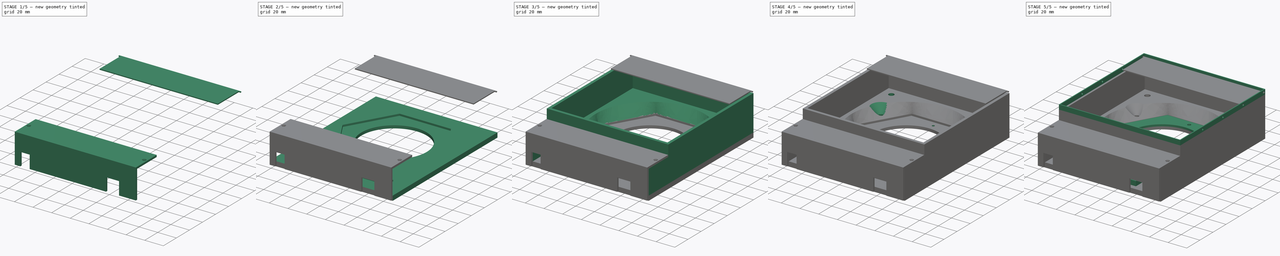
[diagram: build sequence overview — one tinted view per stage of 5, left to right]
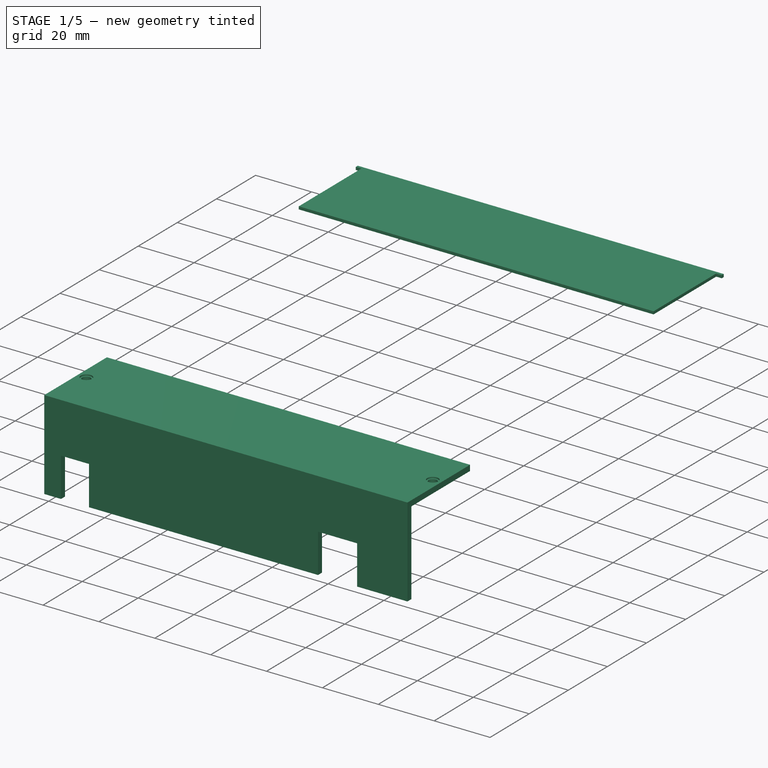
[diagram: stage 1 of 5 — iso view after this stage's code; geometry added in this stage tinted green]
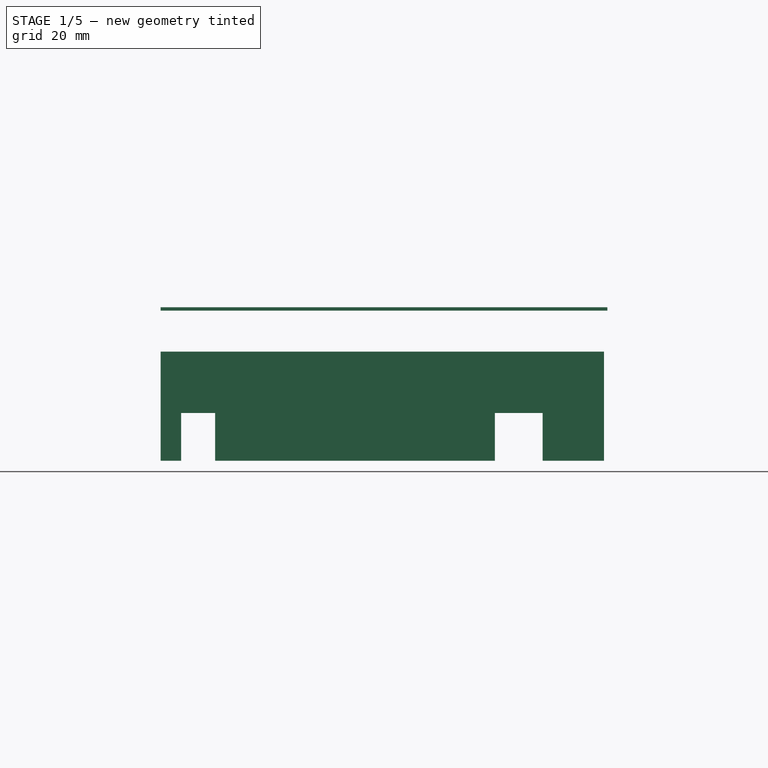
[diagram: stage 1 of 5 — front view after this stage's code; geometry added in this stage tinted green]
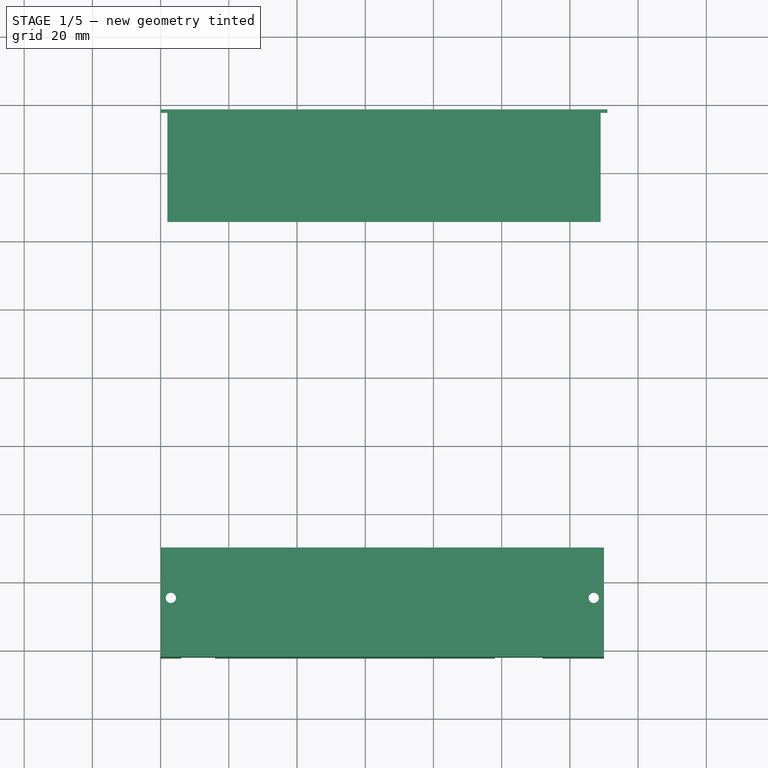
[diagram: stage 1 of 5 — top view after this stage's code; geometry added in this stage tinted green]
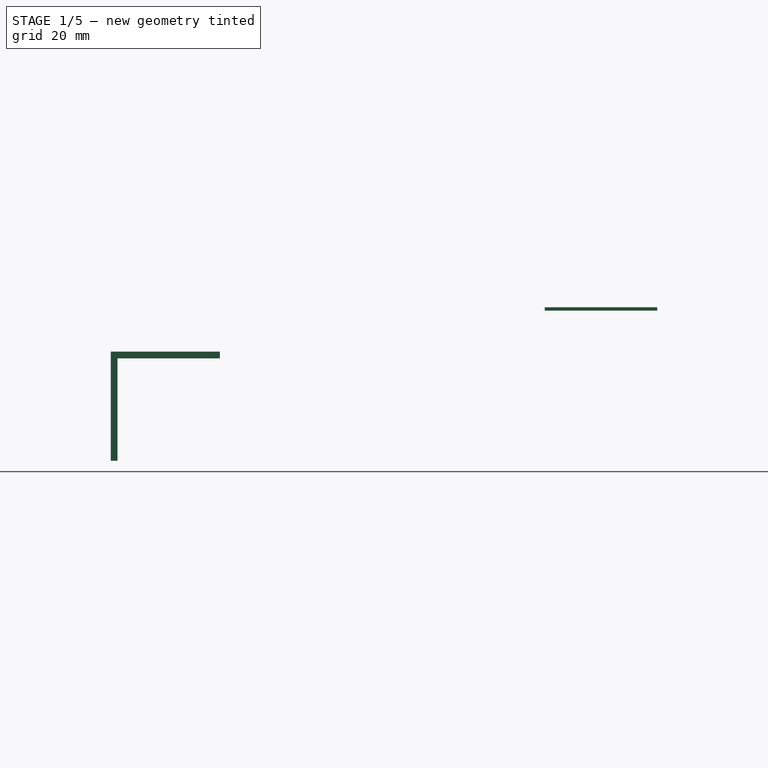
[diagram: stage 1 of 5 — right view after this stage's code; geometry added in this stage tinted green]
FCSTD DOCUMENT  (FreeCAD 0.20R29410 (Git))
Label: ventilation-fan-case
License: All rights reserved
LicenseURL: http://en.wikipedia.org/wiki/All_rights_reserved
objects: Sketcher::SketchObject×24, PartDesign::Pad×11, PartDesign::Hole×6, PartDesign::Pocket×5, PartDesign::Body×5, PartDesign::AdditiveLoft×1
note: 75 computed .brp shape members not serialized (recipe doc carries the construction recipe); baked Part::Feature solids carry a one-line shape summary decoded from their .brp

FEATURE [PartDesign::Body] Body003  label="CableClamp"
  Group = -> [Sketch018,Pad007,Sketch019,Hole004]
  Origin = -> Origin003
  Tip = -> Hole004
FEATURE [Sketcher::SketchObject] Sketch020
  AttachmentOffset = pos=(0,0,45) rot=(0,0,1;0rad)
  FullyConstrained = true
  MapMode = 5
  Placement = pos=(0,0,45) rot=(0,0,1;0rad)
  Support = -> [XY_Plane002]
  sketch-geometry (9):
    g0: LineSegment StartX=0 StartY=0 StartZ=0 EndX=0 EndY=-2 EndZ=0
    g1: LineSegment StartX=0 StartY=-2 StartZ=0 EndX=131 EndY=-2 EndZ=0
    g2: LineSegment StartX=131 StartY=-2 StartZ=0 EndX=131 EndY=-3 EndZ=0
    g3: LineSegment StartX=131 StartY=-3 StartZ=0 EndX=129 EndY=-3 EndZ=0
    g4: LineSegment StartX=129 StartY=-3 StartZ=0 EndX=129 EndY=-35 EndZ=0
    g5: LineSegment StartX=129 StartY=-35 StartZ=0 EndX=2 EndY=-35 EndZ=0
    g6: LineSegment StartX=2 StartY=-35 StartZ=0 EndX=2 EndY=-3 EndZ=0
    g7: LineSegment StartX=2 StartY=-3 StartZ=0 EndX=0 EndY=-3 EndZ=0
    g8: LineSegment StartX=0 StartY=-3 StartZ=0 EndX=0 EndY=-2 EndZ=0
  constraints (26):
    c: Coincident(g0,g-1)
    c: Vertical(g0)
    c: Coincident(g0,g1)
    c: Horizontal(g1)
    c: Coincident(g1,g2)
    c: Vertical(g2)
    c: Coincident(g2,g3)
    c: Horizontal(g3)
    c: Coincident(g3,g4)
    c: Vertical(g4)
    c: Coincident(g4,g5)
    c: Horizontal(g5)
    c: Coincident(g5,g6)
    c: Vertical(g6)
    c: Coincident(g6,g7)
    c: Horizontal(g7)
    c: Coincident(g7,g8)
    c: Coincident(g8,g1)
    c: Vertical(g8)
    c: DistanceY(g8,g8) = 1
    c: DistanceX(g1,g1) = 131
    c: DistanceX(g7,g7) = 2
    c: DistanceY(g0,g0) = 2
    c: DistanceY(g6,g6) = 32
    c: Equal(g3,g7)
    c: Equal(g2,g8)
FEATURE [PartDesign::Pad] Pad008  label="Flap"
  Direction = (0,0,1)
  Length = 1
  Length2 = 10
  Profile = -> Sketch020
  ReferenceAxis = -> Sketch020 [N_Axis]
  Type = 0
FEATURE [PartDesign::Body] Body002  label="CoverFlap"
  Group = -> [Sketch020,Pad008]
  Origin = -> Origin002
  Tip = -> Pad008
FEATURE [Sketcher::SketchObject] Sketch021
  AttachmentOffset = pos=(0,0,31) rot=(0,0,1;0rad)
  FullyConstrained = true
  MapMode = 5
  Placement = pos=(0,0,31) rot=(0,0,1;0rad)
  Support = -> [XY_Plane004]
  sketch-geometry (5):
    g0: LineSegment StartX=0 StartY=0 StartZ=0 EndX=0 EndY=-130.25 EndZ=0
    g1: LineSegment StartX=0 StartY=-130.25 StartZ=0 EndX=130 EndY=-130.25 EndZ=0
    g2: LineSegment StartX=130 StartY=-130.25 StartZ=0 EndX=130 EndY=-162.25 EndZ=0
    g3: LineSegment StartX=130 StartY=-162.25 StartZ=0 EndX=0 EndY=-162.25 EndZ=0
    g4: LineSegment StartX=0 StartY=-162.25 StartZ=0 EndX=0 EndY=-130.25 EndZ=0
  constraints (14):
    c: Coincident(g0,g-1)
    c: PointOnObject(g0,g-2)
    c: DistanceY(g0,g0) = 130.25
    c: Coincident(g1,g2)
    c: Coincident(g2,g3)
    c: Coincident(g3,g4)
    c: Coincident(g4,g1)
    c: Horizontal(g1)
    c: Horizontal(g3)
    c: Vertical(g2)
    c: Vertical(g4)
    c: Coincident(g1,g0)
    c: DistanceY(g4,g4) = 32
    c: DistanceX(g3,g3) = 130
FEATURE [PartDesign::Pad] Pad009  label="RelaiscoverBase"
  Direction = (0,0,1)
  Length = 2
  Length2 = 10
  Profile = -> Sketch021
  ReferenceAxis = -> Sketch021 [N_Axis]
  Type = 0
FEATURE [Sketcher::SketchObject] Sketch022
  FullyConstrained = true
  MapMode = 5
  Placement = pos=(0,0,33) rot=(0,0,1;0rad)
  Support = -> [Pad009]
  sketch-geometry (5):
    g0: LineSegment StartX=0 StartY=0 StartZ=0 EndX=0 EndY=-145 EndZ=0
    g1: LineSegment StartX=0 StartY=-145 StartZ=0 EndX=3 EndY=-145 EndZ=0
    g2: LineSegment StartX=3 StartY=-145 StartZ=0 EndX=127 EndY=-145 EndZ=0
    g3: Circle CenterX=3 CenterY=-145 CenterZ=0 NormalX=0 NormalY=0 NormalZ=1 AngleXU=0 Radius=1.5
    g4: Circle CenterX=127 CenterY=-145 CenterZ=0 NormalX=0 NormalY=0 NormalZ=1 AngleXU=0 Radius=1.5
  constraints (13):
    c: Coincident(g0,g-1)
    c: Vertical(g0)
    c: DistanceY(g0,g0) = 145
    c: Coincident(g1,g0)
    c: Horizontal(g1)
    c: Coincident(g2,g1)
    c: Horizontal(g2)
    c: DistanceX(g1,g1) = 3
    c: DistanceX(g2,g2) = 124
    c: Coincident(g3,g1)
    c: Coincident(g4,g2)
    c: Equal(g4,g3)
    c: Diameter(g3) = 3
FEATURE [PartDesign::Hole] Hole005  label="RelaisCoverHoles"
  BaseFeature = -> Pad009
  CustomThreadClearance = 0
  Depth = 25
  DepthType = 0
  Diameter = 3
  DrillForDepth = false
  DrillPoint = 1
  DrillPointAngle = 118
  HoleCutCountersinkAngle = 90
  HoleCutCustomValues = false
  HoleCutDepth = 0.5
  HoleCutDiameter = 4
  HoleCutType = 1
  ModelThread = false
  Profile = -> Sketch022
  Tapered = false
  TaperedAngle = 90
  ThreadClass = 0
  ThreadDepth = 25
  ThreadDepthType = 0
  ThreadDirection = 0
  ThreadFit = 2
  ThreadSize = 0
  ThreadType = 0
  Threaded = false
  UseCustomThreadClearance = false
FEATURE [Sketcher::SketchObject] Sketch023
  FullyConstrained = true
  MapMode = 5
  Placement = pos=(0,0,31) rot=(1,0,0;3.14159rad)
  Support = -> [Hole005]
  sketch-geometry (5):
    g0: LineSegment StartX=0 StartY=0 StartZ=0 EndX=0 EndY=160.25 EndZ=0
    g1: LineSegment StartX=0 StartY=160.25 StartZ=0 EndX=130 EndY=160.25 EndZ=0
    g2: LineSegment StartX=130 StartY=160.25 StartZ=0 EndX=130 EndY=162.25 EndZ=0
    g3: LineSegment StartX=130 StartY=162.25 StartZ=0 EndX=0 EndY=162.25 EndZ=0
    g4: LineSegment StartX=0 StartY=162.25 StartZ=0 EndX=0 EndY=160.25 EndZ=0
  constraints (14):
    c: Coincident(g0,g-1)
    c: Vertical(g0)
    c: DistanceY(g0,g0) = 160.25
    c: Coincident(g1,g2)
    c: Coincident(g2,g3)
    c: Coincident(g3,g4)
    c: Coincident(g4,g1)
    c: Horizontal(g1)
    c: Horizontal(g3)
    c: Vertical(g2)
    c: Vertical(g4)
    c: Coincident(g1,g0)
    c: DistanceX(g3,g3) = 130
    c: DistanceY(g4,g4) = 2
FEATURE [PartDesign::Pad] Pad010  label="RelaisCoverWall"
  BaseFeature = -> Hole005
  Direction = (0,0,-1)
  Length = 30
  Length2 = 10
  Profile = -> Sketch023
  ReferenceAxis = -> Sketch023 [N_Axis]
  Type = 0
FEATURE [Sketcher::SketchObject] Sketch024
  FullyConstrained = true
  MapMode = 5
  Placement = pos=(0,-162.25,0) rot=(1,0,0;1.5708rad)
  Support = -> [Pad010]
  sketch-geometry (10):
    g0: LineSegment StartX=0 StartY=0 StartZ=0 EndX=6 EndY=0 EndZ=0
    g1: LineSegment StartX=6 StartY=0 StartZ=0 EndX=16 EndY=0 EndZ=0
    g2: LineSegment StartX=16 StartY=0 StartZ=0 EndX=16 EndY=15 EndZ=0
    g3: LineSegment StartX=16 StartY=15 StartZ=0 EndX=6 EndY=15 EndZ=0
    g4: LineSegment StartX=6 StartY=15 StartZ=0 EndX=6 EndY=0 EndZ=0
    g5: LineSegment StartX=16 StartY=0 StartZ=0 EndX=98 EndY=0 EndZ=0
    g6: LineSegment StartX=98 StartY=0 StartZ=0 EndX=112 EndY=0 EndZ=0
    g7: LineSegment StartX=112 StartY=0 StartZ=0 EndX=112 EndY=15 EndZ=0
    g8: LineSegment StartX=112 StartY=15 StartZ=0 EndX=98 EndY=15 EndZ=0
    g9: LineSegment StartX=98 StartY=15 StartZ=0 EndX=98 EndY=0 EndZ=0
  constraints (28):
    c: Coincident(g0,g-1)
    c: Horizontal(g0)
    c: Coincident(g1,g2)
    c: Coincident(g2,g3)
    c: Coincident(g3,g4)
    c: Coincident(g4,g1)
    c: Horizontal(g1)
    c: Horizontal(g3)
    c: Vertical(g2)
    c: Vertical(g4)
    c: Coincident(g1,g0)
    c: Coincident(g5,g1)
    c: Horizontal(g5)
    c: Coincident(g6,g7)
    c: Coincident(g7,g8)
    c: Coincident(g8,g9)
    c: Coincident(g9,g6)
    c: Horizontal(g6)
    c: Horizontal(g8)
    c: Vertical(g7)
    c: Vertical(g9)
    c: Coincident(g6,g5)
    c: DistanceX(g3,g3) = 10
    c: DistanceY(g2,g2) = 15
    c: DistanceX(g0,g0) = 6
    c: DistanceX(g5,g5) = 82
    c: DistanceX(g8,g8) = 14
    c: DistanceY(g7,g7) = 15
FEATURE [PartDesign::Pocket] Pocket004  label="RelaiscoverCableHoles"
  BaseFeature = -> Pad010
  Direction = (0,1,-2e-16)
  Length = 5
  Length2 = 5
  Profile = -> Sketch024
  ReferenceAxis = -> Sketch024 [N_Axis]
  Type = 0
FEATURE [PartDesign::Body] Body004  label="RelaisCover"
  Group = -> [Sketch021,Pad009,Sketch022,Hole005,Sketch023,Pad010,Sketch024,Pocket004]
  Origin = -> Origin004
  Tip = -> Pocket004
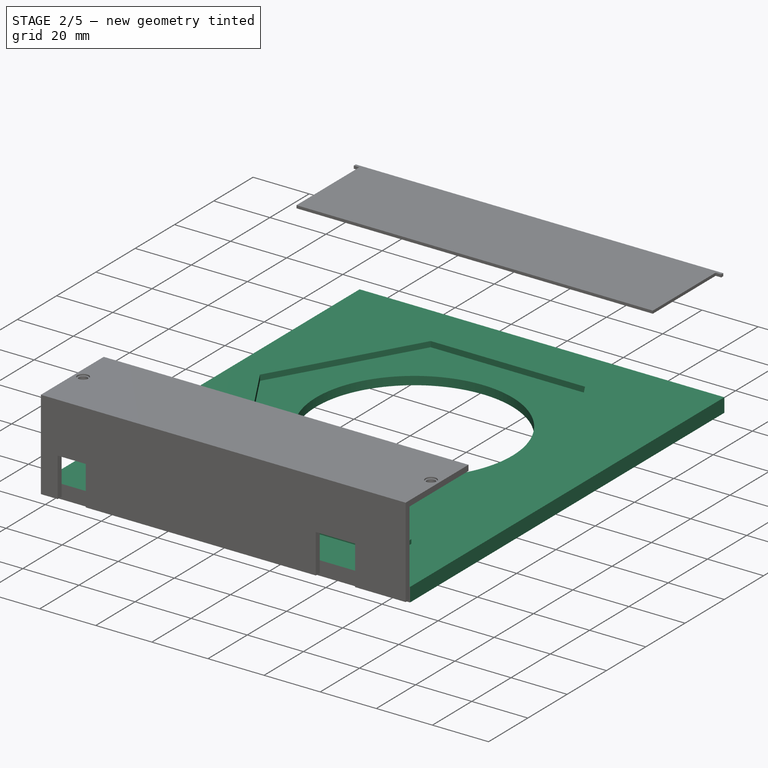
[diagram: stage 2 of 5 — iso view after this stage's code; geometry added in this stage tinted green]
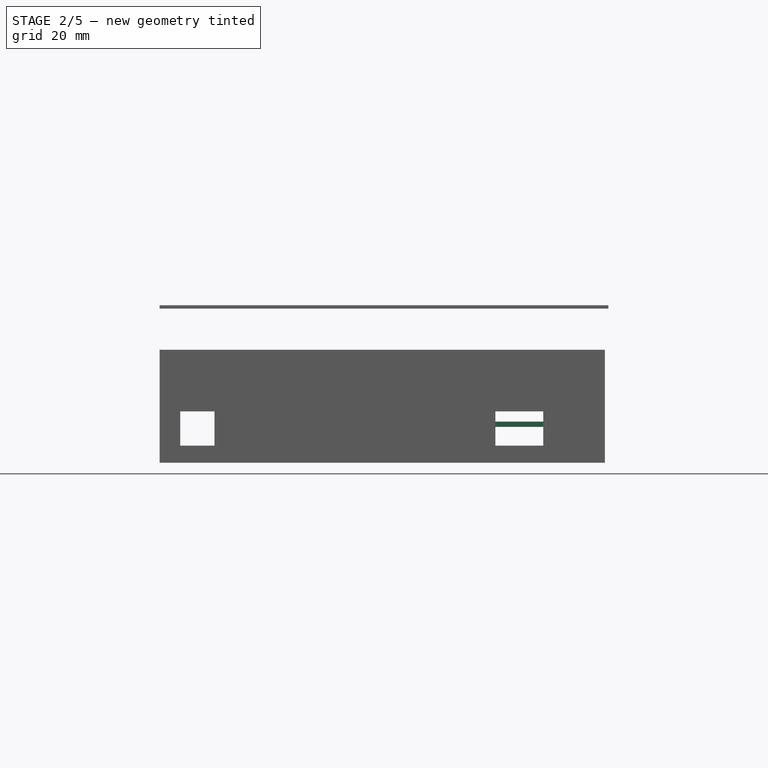
[diagram: stage 2 of 5 — front view after this stage's code; geometry added in this stage tinted green]
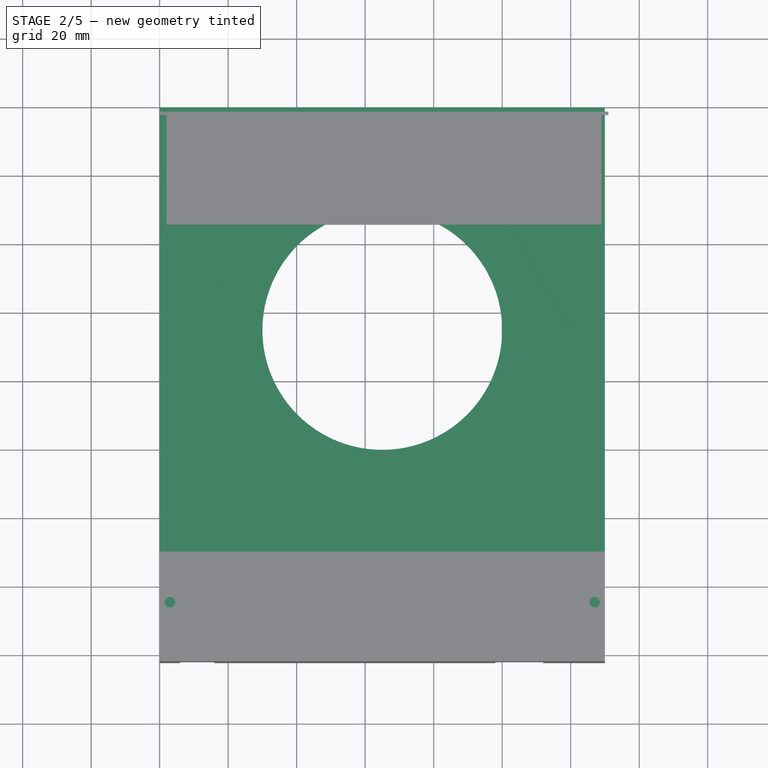
[diagram: stage 2 of 5 — top view after this stage's code; geometry added in this stage tinted green]
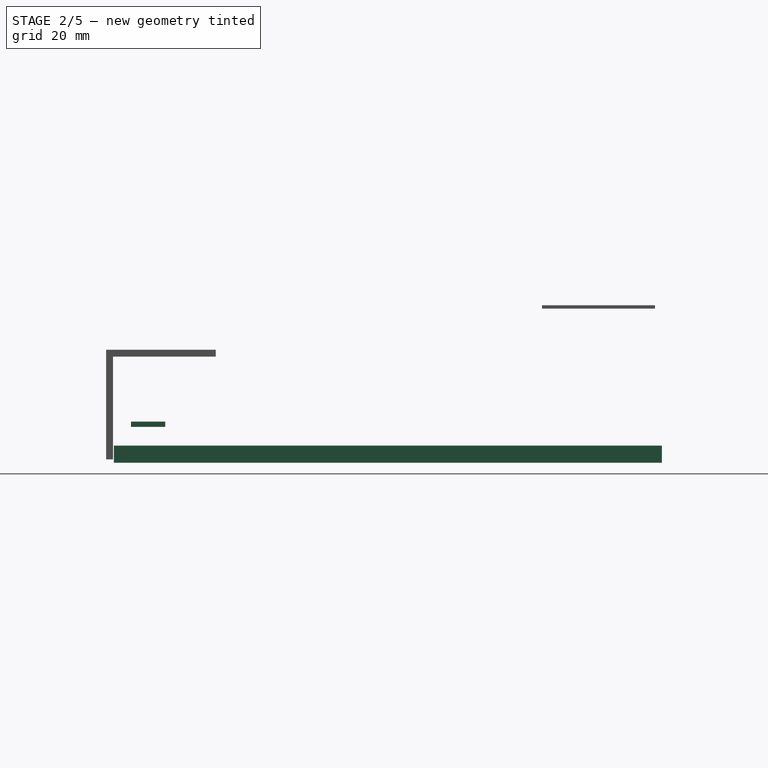
[diagram: stage 2 of 5 — right view after this stage's code; geometry added in this stage tinted green]
FEATURE [Sketcher::SketchObject] Sketch
  FullyConstrained = true
  MapMode = 5
  Support = -> [XY_Plane]
  sketch-geometry (6):
    g0: LineSegment StartX=0 StartY=0 StartZ=0 EndX=130 EndY=0 EndZ=0
    g1: LineSegment StartX=130 StartY=0 StartZ=0 EndX=130 EndY=-160 EndZ=0
    g2: LineSegment StartX=130 StartY=-160 StartZ=0 EndX=0 EndY=-160 EndZ=0
    g3: LineSegment StartX=0 StartY=-160 StartZ=0 EndX=0 EndY=0 EndZ=0
    g4: LineSegment StartX=0 StartY=0 StartZ=0 EndX=65 EndY=-65 EndZ=0
    g5: Circle CenterX=65 CenterY=-65 CenterZ=0 NormalX=0 NormalY=0 NormalZ=1 AngleXU=0 Radius=35
  constraints (16):
    c: Coincident(g0,g1)
    c: Coincident(g1,g2)
    c: Coincident(g2,g3)
    c: Coincident(g3,g0)
    c: Horizontal(g0)
    c: Horizontal(g2)
    c: Vertical(g1)
    c: Vertical(g3)
    c: Coincident(g0,g-1)
    c: DistanceX(g0,g0) = 130
    c: DistanceY(g3,g3) = 160
    c: Coincident(g4,g0)
    c: Coincident(g5,g4)
    c: Diameter(g5) = 70
    c: DistanceX(g4,g4) = 65
    c: DistanceY(g4,g4) = 65
FEATURE [PartDesign::Pad] Pad  label="BasePlate"
  Direction = (1,1,1)
  Length = 5
  Length2 = 100
  Profile = -> Sketch
  Type = 0
FEATURE [Sketcher::SketchObject] Sketch001
  ExternalGeometry = -> [Pad]
  FullyConstrained = true
  MapMode = 5
  Placement = pos=(0,0,5) rot=(0,0,1;0rad)
  Support = -> [Pad]
  sketch-geometry (7):
    g0: LineSegment StartX=92.5 StartY=-112.631 StartZ=0 EndX=120 EndY=-65 EndZ=0
    g1: LineSegment StartX=120 StartY=-65 StartZ=0 EndX=92.5 EndY=-17.3686 EndZ=0
    g2: LineSegment StartX=92.5 StartY=-17.3686 StartZ=0 EndX=37.5 EndY=-17.3686 EndZ=0
    g3: LineSegment StartX=37.5 StartY=-17.3686 StartZ=0 EndX=10 EndY=-65 EndZ=0
    g4: LineSegment StartX=10 StartY=-65 StartZ=0 EndX=37.5 EndY=-112.631 EndZ=0
    g5: LineSegment StartX=37.5 StartY=-112.631 StartZ=0 EndX=92.5 EndY=-112.631 EndZ=0
    g6: Circle CenterX=65 CenterY=-65 CenterZ=0 NormalX=0 NormalY=0 NormalZ=1 AngleXU=0 Radius=55
  constraints (16):
    c: Coincident(g0,g1)
    c: Coincident(g1,g2)
    c: Coincident(g2,g3)
    c: Coincident(g3,g4)
    c: Coincident(g4,g5)
    c: Coincident(g5,g0)
    c: Equal(g0, g1-g5) x5
    c: PointOnObject(g0,g6)
    c: PointOnObject(g1,g6)
    c: PointOnObject(g2,g6)
    c: PointOnObject(g3,g6)
    c: PointOnObject(g4,g6)
    c: PointOnObject(g5,g6)
    c: Coincident(g6,g-3)
    c: Horizontal(g2)
    c: DistanceX(g2,g2) = 55
FEATURE [PartDesign::Pocket] Pocket  label="BackAirHole"
  BaseFeature = -> Pad
  Direction = (1,1,1)
  Length = 2
  Length2 = 100
  Profile = -> Sketch001
  Type = 0
FEATURE [PartDesign::Body] Body
  Group = -> [Sketch,Pad,Sketch001,Pocket,Sketch002,Sketch003,AdditiveLoft,Sketch004,Pad001,Sketch005,Pad002,Sketch006,Pad003,Sketch007,Pocket001,Sketch008,Pocket002,Sketch009,Hole,Sketch010,Hole001,Sketch011,Hole002,Sketch012,Pad004,Sketch016,Pocket003,Sketch017,Pad006]
  Origin = -> Origin
  Tip = -> Pad006
FEATURE [Sketcher::SketchObject] Sketch018
  AttachmentOffset = pos=(0,0,10.5) rot=(0,0,1;0rad)
  FullyConstrained = true
  MapMode = 5
  Placement = pos=(0,0,10.5) rot=(0,0,1;0rad)
  Support = -> [XY_Plane003]
  sketch-geometry (5):
    g0: LineSegment StartX=0 StartY=0 StartZ=0 EndX=90 EndY=-145 EndZ=0
    g1: LineSegment StartX=90 StartY=-145 StartZ=0 EndX=120 EndY=-145 EndZ=0
    g2: LineSegment StartX=120 StartY=-145 StartZ=0 EndX=120 EndY=-155 EndZ=0
    g3: LineSegment StartX=120 StartY=-155 StartZ=0 EndX=90 EndY=-155 EndZ=0
    g4: LineSegment StartX=90 StartY=-155 StartZ=0 EndX=90 EndY=-145 EndZ=0
  constraints (14):
    c: Coincident(g0,g-1)
    c: DistanceX(g0,g0) = 90
    c: DistanceY(g0,g0) = 145
    c: Coincident(g1,g2)
    c: Coincident(g2,g3)
    c: Coincident(g3,g4)
    c: Coincident(g4,g1)
    c: Horizontal(g1)
    c: Horizontal(g3)
    c: Vertical(g2)
    c: Vertical(g4)
    c: Coincident(g1,g0)
    c: DistanceX(g1,g1) = 30
    c: DistanceY(g4,g4) = 10
FEATURE [PartDesign::Pad] Pad007
  Direction = (0,0,1)
  Length = 1.5
  Length2 = 10
  Profile = -> Sketch018
  ReferenceAxis = -> Sketch018 [N_Axis]
  Type = 0
FEATURE [Sketcher::SketchObject] Sketch019
  ExternalGeometry = -> [Pad007]
  FullyConstrained = true
  MapMode = 5
  Placement = pos=(0,0,12) rot=(0,0,1;0rad)
  Support = -> [Pad007]
  sketch-geometry (7):
    g0: LineSegment StartX=90 StartY=-145 StartZ=0 EndX=95 EndY=-150 EndZ=0
    g1: LineSegment StartX=90 StartY=-155 StartZ=0 EndX=95 EndY=-150 EndZ=0
    g2: LineSegment StartX=95 StartY=-150 StartZ=0 EndX=115 EndY=-150 EndZ=0
    g3: LineSegment StartX=115 StartY=-150 StartZ=0 EndX=120 EndY=-145 EndZ=0
    g4: LineSegment StartX=115 StartY=-150 StartZ=0 EndX=120 EndY=-155 EndZ=0
    g5: Circle CenterX=95 CenterY=-150 CenterZ=0 NormalX=0 NormalY=0 NormalZ=1 AngleXU=0 Radius=1.5
    g6: Circle CenterX=115 CenterY=-150 CenterZ=0 NormalX=0 NormalY=0 NormalZ=1 AngleXU=0 Radius=1.5
  constraints (16):
    c: Coincident(g0,g-3)
    c: Coincident(g1,g-3)
    c: Coincident(g1,g0)
    c: Coincident(g2,g0)
    c: Horizontal(g2)
    c: Coincident(g3,g2)
    c: Coincident(g3,g-4)
    c: Coincident(g4,g2)
    c: Coincident(g4,g-4)
    c: Equal(g3,g4)
    c: Equal(g4,g1)
    c: DistanceX(g0,g0) = 5
    c: Coincident(g5,g0)
    c: Coincident(g6,g2)
    c: Equal(g6,g5)
    c: Diameter(g6) = 3
FEATURE [PartDesign::Hole] Hole004
  BaseFeature = -> Pad007
  CustomThreadClearance = 0
  Depth = 63.9498
  DepthType = 1
  Diameter = 3
  DrillForDepth = false
  DrillPoint = 1
  DrillPointAngle = 118
  HoleCutCountersinkAngle = 90
  HoleCutCustomValues = false
  HoleCutDepth = 2.7
  HoleCutDiameter = 6.1
  HoleCutType = 0
  ModelThread = false
  Profile = -> Sketch019
  Tapered = false
  TaperedAngle = 90
  ThreadClass = 0
  ThreadDepth = 63.9498
  ThreadDepthType = 0
  ThreadDirection = 0
  ThreadFit = 0
  ThreadSize = 0
  ThreadType = 0
  Threaded = false
  UseCustomThreadClearance = false
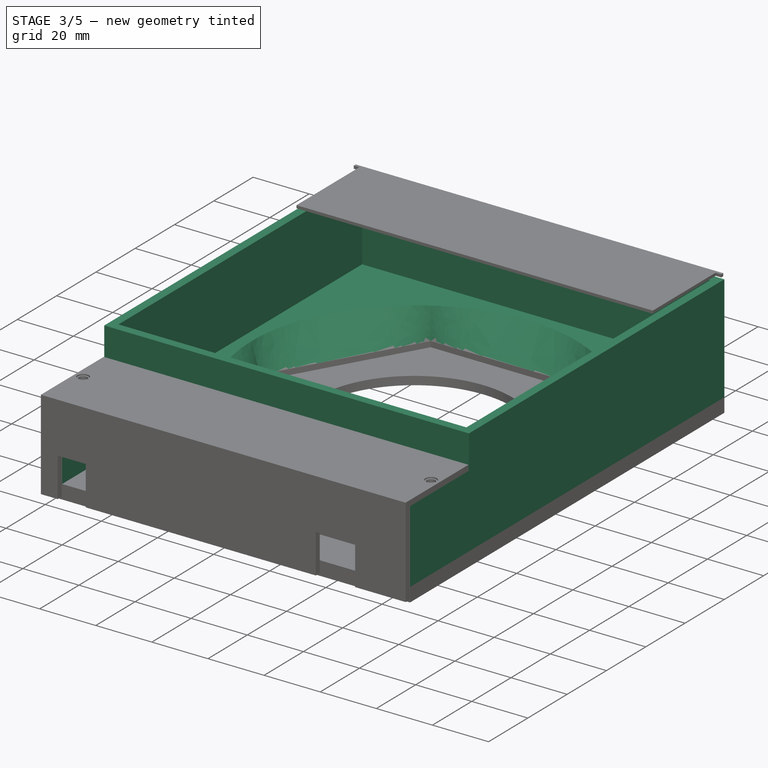
[diagram: stage 3 of 5 — iso view after this stage's code; geometry added in this stage tinted green]
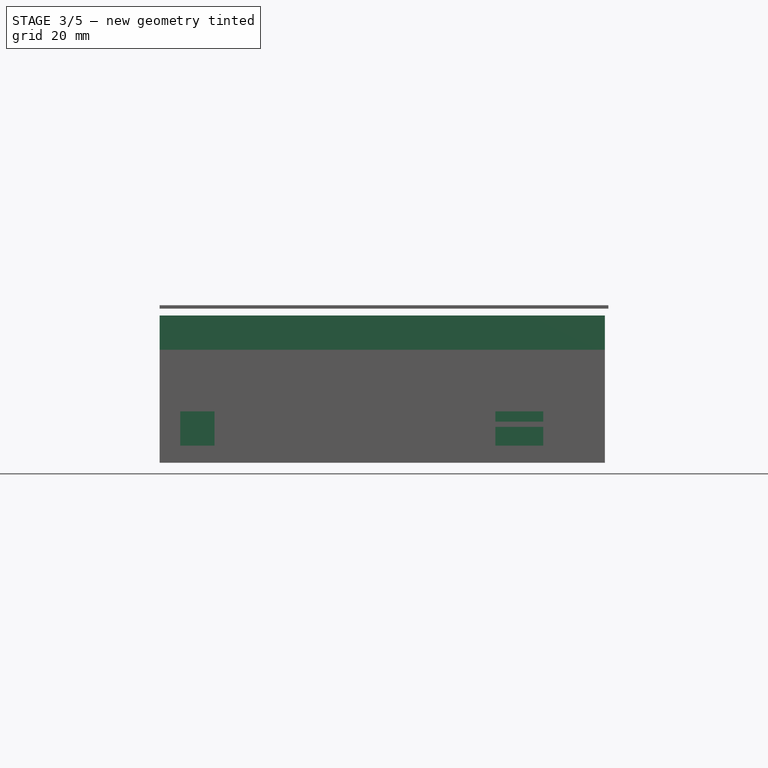
[diagram: stage 3 of 5 — front view after this stage's code; geometry added in this stage tinted green]
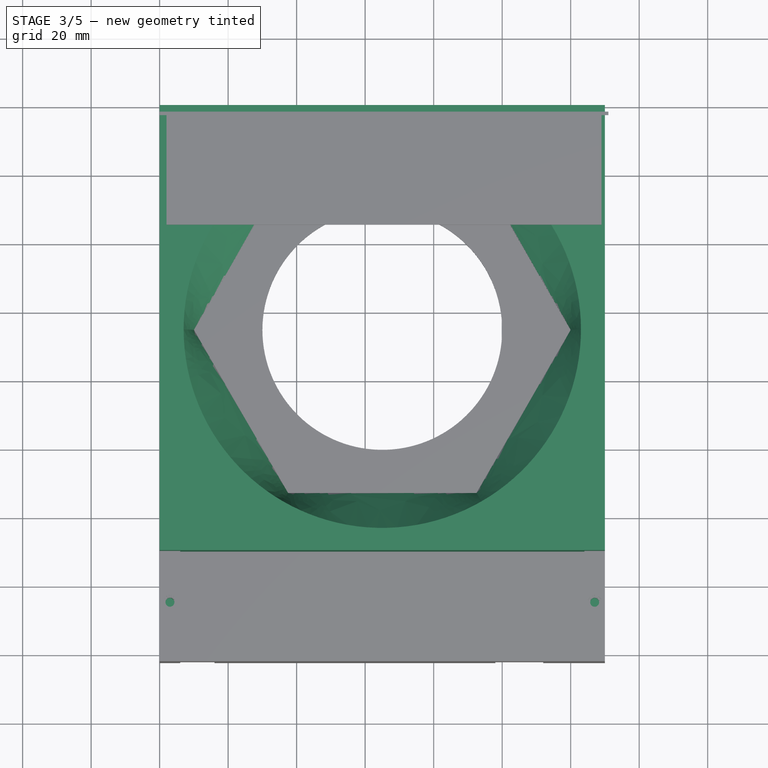
[diagram: stage 3 of 5 — top view after this stage's code; geometry added in this stage tinted green]
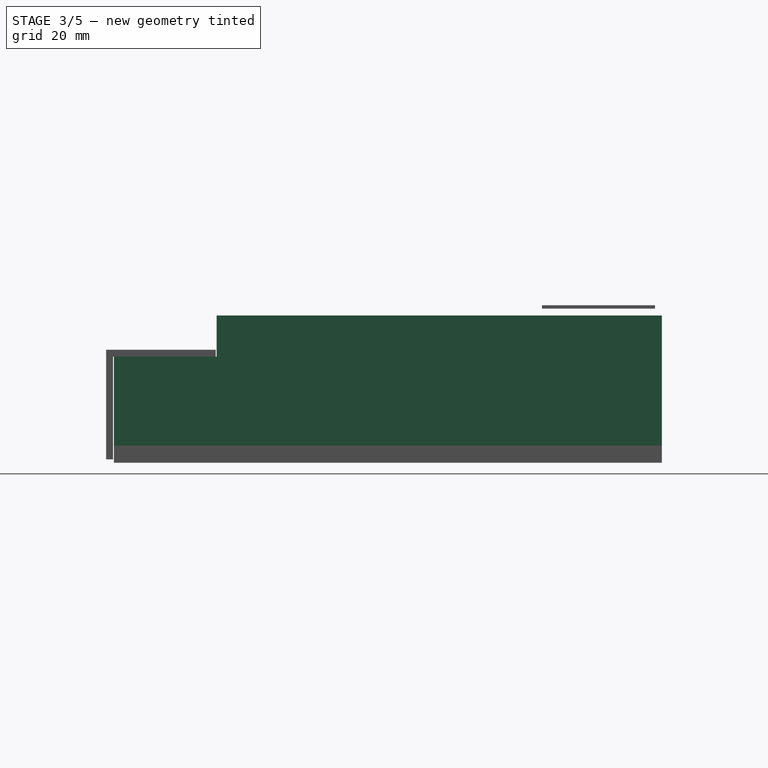
[diagram: stage 3 of 5 — right view after this stage's code; geometry added in this stage tinted green]
FEATURE [Sketcher::SketchObject] Sketch002
  ExternalGeometry = -> [Pocket]
  FullyConstrained = true
  MapMode = 5
  Placement = pos=(0,0,5) rot=(0,0,1;0rad)
  Support = -> [Pocket]
  sketch-geometry (10):
    g0: LineSegment StartX=0 StartY=0 StartZ=0 EndX=130 EndY=0 EndZ=0
    g1: LineSegment StartX=130 StartY=0 StartZ=0 EndX=130 EndY=-130 EndZ=0
    g2: LineSegment StartX=130 StartY=-130 StartZ=0 EndX=0 EndY=-130 EndZ=0
    g3: LineSegment StartX=0 StartY=-130 StartZ=0 EndX=0 EndY=0 EndZ=0
    g4: LineSegment StartX=37.5 StartY=-17.3686 StartZ=0 EndX=10 EndY=-65 EndZ=0
    g5: LineSegment StartX=10 StartY=-65 StartZ=0 EndX=37.5 EndY=-112.631 EndZ=0
    g6: LineSegment StartX=37.5 StartY=-112.631 StartZ=0 EndX=92.5 EndY=-112.631 EndZ=0
    g7: LineSegment StartX=92.5 StartY=-112.631 StartZ=0 EndX=120 EndY=-65 EndZ=0
    g8: LineSegment StartX=120 StartY=-65 StartZ=0 EndX=92.5 EndY=-17.3686 EndZ=0
    g9: LineSegment StartX=92.5 StartY=-17.3686 StartZ=0 EndX=37.5 EndY=-17.3686 EndZ=0
  constraints (22):
    c: Coincident(g0,g1)
    c: Coincident(g2,g3)
    c: Coincident(g3,g0)
    c: Horizontal(g2)
    c: Vertical(g1)
    c: Vertical(g3)
    c: Coincident(g0,g-1)
    c: Coincident(g1,g2)
    c: Coincident(g0,g-7)
    c: Equal(g0,g3)
    c: Coincident(g-9,g4)
    c: Coincident(g4,g-12)
    c: Coincident(g4,g5)
    c: Coincident(g5,g-12)
    c: Coincident(g5,g6)
    c: Coincident(g6,g-11)
    c: Coincident(g6,g7)
    c: Coincident(g7,g-11)
    c: Coincident(g7,g8)
    c: Coincident(g8,g-10)
    c: Coincident(g8,g9)
    c: Coincident(g9,g4)
FEATURE [Sketcher::SketchObject] Sketch003
  AttachmentOffset = pos=(0,0,10) rot=(0,0,1;0rad)
  ExternalGeometry = -> [Pocket]
  FullyConstrained = true
  MapMode = 5
  Placement = pos=(0,0,15) rot=(0,0,1;0rad)
  Support = -> [Pocket]
  sketch-geometry (5):
    g0: LineSegment StartX=0 StartY=0 StartZ=0 EndX=130 EndY=0 EndZ=0
    g1: LineSegment StartX=130 StartY=0 StartZ=0 EndX=130 EndY=-130 EndZ=0
    g2: LineSegment StartX=130 StartY=-130 StartZ=0 EndX=0 EndY=-130 EndZ=0
    g3: LineSegment StartX=0 StartY=-130 StartZ=0 EndX=0 EndY=0 EndZ=0
    g4: Circle CenterX=65 CenterY=-65 CenterZ=0 NormalX=0 NormalY=0 NormalZ=1 AngleXU=0 Radius=58
  constraints (12):
    c: Coincident(g0,g1)
    c: Coincident(g2,g3)
    c: Coincident(g3,g0)
    c: Horizontal(g2)
    c: Vertical(g1)
    c: Vertical(g3)
    c: Coincident(g0,g-1)
    c: Coincident(g2,g1)
    c: Coincident(g0,g-6)
    c: Equal(g3,g0)
    c: Coincident(g4,g-7)
    c: Diameter(g4) = 116
FEATURE [PartDesign::AdditiveLoft] AdditiveLoft  label="AirShaper"
  BaseFeature = -> Pocket
  Closed = false
  Profile = -> Sketch002
  Ruled = false
  Sections = -> [Sketch003]
FEATURE [Sketcher::SketchObject] Sketch004
  ExternalGeometry = -> [AdditiveLoft]
  FullyConstrained = true
  MapMode = 5
  Placement = pos=(0,0,15) rot=(0,0,1;0rad)
  Support = -> [AdditiveLoft]
  sketch-geometry (12):
    g0: LineSegment StartX=0 StartY=0 StartZ=0 EndX=130 EndY=0 EndZ=0
    g1: LineSegment StartX=130 StartY=0 StartZ=0 EndX=130 EndY=-130 EndZ=0
    g2: LineSegment StartX=130 StartY=-130 StartZ=0 EndX=0 EndY=-130 EndZ=0
    g3: LineSegment StartX=0 StartY=-130 StartZ=0 EndX=0 EndY=0 EndZ=0
    g4: LineSegment StartX=3 StartY=-3 StartZ=0 EndX=127 EndY=-3 EndZ=0
    g5: LineSegment StartX=127 StartY=-3 StartZ=0 EndX=127 EndY=-127 EndZ=0
    g6: LineSegment StartX=127 StartY=-127 StartZ=0 EndX=3 EndY=-127 EndZ=0
    g7: LineSegment StartX=3 StartY=-127 StartZ=0 EndX=3 EndY=-3 EndZ=0
    g8: LineSegment StartX=3 StartY=-3 StartZ=0 EndX=0 EndY=0 EndZ=0
    g9: LineSegment StartX=127 StartY=-3 StartZ=0 EndX=130 EndY=0 EndZ=0
    g10: LineSegment StartX=127 StartY=-127 StartZ=0 EndX=130 EndY=-130 EndZ=0
    g11: LineSegment StartX=0 StartY=-130 StartZ=0 EndX=3 EndY=-127 EndZ=0
  constraints (30):
    c: Coincident(g0,g1)
    c: Coincident(g1,g2)
    c: Coincident(g2,g3)
    c: Coincident(g3,g0)
    c: Horizontal(g0)
    c: Horizontal(g2)
    c: Vertical(g1)
    c: Vertical(g3)
    c: Coincident(g0,g-1)
    c: Coincident(g1,g-4)
    c: Coincident(g4,g5)
    c: Coincident(g5,g6)
    c: Coincident(g6,g7)
    c: Coincident(g7,g4)
    c: Horizontal(g4)
    c: Horizontal(g6)
    c: Vertical(g5)
    c: Vertical(g7)
    c: Coincident(g8,g4)
    c: Coincident(g8,g0)
    c: Coincident(g9,g4)
    c: Coincident(g9,g0)
    c: Coincident(g10,g5)
    c: Coincident(g10,g1)
    c: Coincident(g11,g2)
    c: Coincident(g11,g6)
    c: Equal(g11,g10)
    c: Equal(g10,g9)
    c: DistanceY(g8,g8) = 3
    c: DistanceX(g8,g8) = 3
FEATURE [PartDesign::Pad] Pad001  label="FanWalls"
  BaseFeature = -> AdditiveLoft
  Direction = (1,1,1)
  Length = 28
  Length2 = 100
  Profile = -> Sketch004
  Type = 0
FEATURE [Sketcher::SketchObject] Sketch005
  ExternalGeometry = -> [Pad001]
  FullyConstrained = true
  MapMode = 5
  Placement = pos=(0,0,5) rot=(0,0,1;0rad)
  Support = -> [Pad001]
  sketch-geometry (38):
    g0: LineSegment StartX=0 StartY=-160 StartZ=0 EndX=20 EndY=-155 EndZ=0
    g1: LineSegment StartX=0 StartY=-130 StartZ=0 EndX=20 EndY=-134 EndZ=0
    g2: LineSegment StartX=20 StartY=-134 StartZ=0 EndX=64.75 EndY=-134 EndZ=0
    g3: LineSegment StartX=64.75 StartY=-134 StartZ=0 EndX=64.75 EndY=-155 EndZ=0
    g4: LineSegment StartX=64.75 StartY=-155 StartZ=0 EndX=20 EndY=-155 EndZ=0
    g5: LineSegment StartX=20 StartY=-155 StartZ=0 EndX=20 EndY=-134 EndZ=0
    g6: Circle CenterX=20 CenterY=-134 CenterZ=0 NormalX=0 NormalY=0 NormalZ=1 AngleXU=0 Radius=1.25
    g7: Circle CenterX=20 CenterY=-155 CenterZ=0 NormalX=0 NormalY=0 NormalZ=1 AngleXU=0 Radius=1.25
    g8: Circle CenterX=64.75 CenterY=-155 CenterZ=0 NormalX=0 NormalY=0 NormalZ=1 AngleXU=0 Radius=1.25
    g9: Circle CenterX=64.75 CenterY=-134 CenterZ=0 NormalX=0 NormalY=0 NormalZ=1 AngleXU=0 Radius=1.25
    g10: LineSegment StartX=21.8475 StartY=-137.2 StartZ=0 EndX=23.695 EndY=-134 EndZ=0
    g11: LineSegment StartX=23.695 StartY=-134 StartZ=0 EndX=21.8475 EndY=-130.8 EndZ=0
    g12: LineSegment StartX=21.8475 StartY=-130.8 StartZ=0 EndX=18.1525 EndY=-130.8 EndZ=0
    g13: LineSegment StartX=18.1525 StartY=-130.8 StartZ=0 EndX=16.305 EndY=-134 EndZ=0
    g14: LineSegment StartX=16.305 StartY=-134 StartZ=0 EndX=18.1525 EndY=-137.2 EndZ=0
    g15: LineSegment StartX=18.1525 StartY=-137.2 StartZ=0 EndX=21.8475 EndY=-137.2 EndZ=0
    g16: Circle CenterX=20 CenterY=-134 CenterZ=0 NormalX=0 NormalY=0 NormalZ=1 AngleXU=0 Radius=3.69504
    g17: LineSegment StartX=66.5975 StartY=-137.2 StartZ=0 EndX=68.445 EndY=-134 EndZ=0
    g18: LineSegment StartX=68.445 StartY=-134 StartZ=0 EndX=66.5975 EndY=-130.8 EndZ=0
    g19: LineSegment StartX=66.5975 StartY=-130.8 StartZ=0 EndX=62.9025 EndY=-130.8 EndZ=0
    g20: LineSegment StartX=62.9025 StartY=-130.8 StartZ=0 EndX=61.055 EndY=-134 EndZ=0
    g21: LineSegment StartX=61.055 StartY=-134 StartZ=0 EndX=62.9025 EndY=-137.2 EndZ=0
    g22: LineSegment StartX=62.9025 StartY=-137.2 StartZ=0 EndX=66.5975 EndY=-137.2 EndZ=0
    g23: Circle CenterX=64.75 CenterY=-134 CenterZ=0 NormalX=0 NormalY=0 NormalZ=1 AngleXU=0 Radius=3.69504
    g24: LineSegment StartX=66.5975 StartY=-158.2 StartZ=0 EndX=68.445 EndY=-155 EndZ=0
    g25: LineSegment StartX=68.445 StartY=-155 StartZ=0 EndX=66.5975 EndY=-151.8 EndZ=0
    g26: LineSegment StartX=66.5975 StartY=-151.8 StartZ=0 EndX=62.9025 EndY=-151.8 EndZ=0
    g27: LineSegment StartX=62.9025 StartY=-151.8 StartZ=0 EndX=61.055 EndY=-155 EndZ=0
    g28: LineSegment StartX=61.055 StartY=-155 StartZ=0 EndX=62.9025 EndY=-158.2 EndZ=0
    g29: LineSegment StartX=62.9025 StartY=-158.2 StartZ=0 EndX=66.5975 EndY=-158.2 EndZ=0
    g30: Circle CenterX=64.75 CenterY=-155 CenterZ=0 NormalX=0 NormalY=0 NormalZ=1 AngleXU=0 Radius=3.69504
    g31: LineSegment StartX=21.8475 StartY=-158.2 StartZ=0 EndX=23.695 EndY=-155 EndZ=0
    g32: LineSegment StartX=23.695 StartY=-155 StartZ=0 EndX=21.8475 EndY=-151.8 EndZ=0
    g33: LineSegment StartX=21.8475 StartY=-151.8 StartZ=0 EndX=18.1525 EndY=-151.8 EndZ=0
    g34: LineSegment StartX=18.1525 StartY=-151.8 StartZ=0 EndX=16.305 EndY=-155 EndZ=0
    g35: LineSegment StartX=16.305 StartY=-155 StartZ=0 EndX=18.1525 EndY=-158.2 EndZ=0
    g36: LineSegment StartX=18.1525 StartY=-158.2 StartZ=0 EndX=21.8475 EndY=-158.2 EndZ=0
    g37: Circle CenterX=20 CenterY=-155 CenterZ=0 NormalX=0 NormalY=0 NormalZ=1 AngleXU=0 Radius=3.69504
  constraints (88):
    c: Coincident(g0,g-3)
    c: Coincident(g1,g-3)
    c: Coincident(g2,g3)
    c: Coincident(g3,g4)
    c: Coincident(g4,g5)
    c: Coincident(g5,g2)
    c: Horizontal(g2)
    c: Horizontal(g4)
    c: Vertical(g3)
    c: Vertical(g5)
    c: Coincident(g2,g1)
    c: Coincident(g0,g4)
    c: DistanceX(g2,g2) = 44.75
    c: DistanceY(g5,g5) = 21
    c: Coincident(g6,g1)
    c: Coincident(g7,g0)
    c: Coincident(g8,g3)
    c: Coincident(g9,g2)
    c: Equal(g9,g8)
    c: Equal(g8,g7)
    c: Equal(g7,g6)
    c: Diameter(g8) = 2.5
    c: DistanceY(g1,g1) = 4
    c: DistanceX(g1,g1) = 20
    c: Coincident(g10,g11)
    c: Coincident(g11,g12)
    c: Coincident(g12,g13)
    c: Coincident(g13,g14)
    c: Coincident(g14,g15)
    c: Coincident(g15,g10)
    c: Equal(g10, g11-g15) x5
    c: PointOnObject(g10,g16)
    c: PointOnObject(g11,g16)
    c: PointOnObject(g12,g16)
    c: PointOnObject(g13,g16)
    c: PointOnObject(g14,g16)
    c: PointOnObject(g15,g16)
    c: Coincident(g16,g6)
    c: Coincident(g17,g18)
    c: Coincident(g18,g19)
    c: Coincident(g19,g20)
    c: Coincident(g20,g21)
    c: Coincident(g21,g22)
    c: Coincident(g22,g17)
    c: Equal(g17, g18-g22) x5
    c: PointOnObject(g17,g23)
    c: PointOnObject(g18,g23)
    c: PointOnObject(g19,g23)
    c: PointOnObject(g20,g23)
    c: PointOnObject(g21,g23)
    c: PointOnObject(g22,g23)
    c: Coincident(g23,g9)
    c: Coincident(g24,g25)
    c: Coincident(g25,g26)
    c: Coincident(g26,g27)
    c: Coincident(g27,g28)
    c: Coincident(g28,g29)
    c: Coincident(g29,g24)
    c: Equal(g24, g25-g29) x5
    c: PointOnObject(g24,g30)
    c: PointOnObject(g25,g30)
    c: PointOnObject(g26,g30)
    c: PointOnObject(g27,g30)
    c: PointOnObject(g28,g30)
    c: PointOnObject(g29,g30)
    c: Coincident(g30,g8)
    c: Coincident(g31,g32)
    c: Coincident(g32,g33)
    c: Coincident(g33,g34)
    c: Coincident(g34,g35)
    c: Coincident(g35,g36)
    c: Coincident(g36,g31)
    c: Equal(g31, g32-g36) x5
    c: PointOnObject(g31,g37)
    c: PointOnObject(g32,g37)
    c: PointOnObject(g33,g37)
    c: PointOnObject(g34,g37)
    c: PointOnObject(g35,g37)
    c: PointOnObject(g36,g37)
    c: Coincident(g37,g7)
    c: Parallel(g36,g4)
    c: Parallel(g29,g4)
    c: Parallel(g15,g2)
    c: Parallel(g22,g2)
    c: DistanceY(g14,g6) = 3.2
    c: Equal(g22,g15)
    c: Equal(g15,g33)
    c: Equal(g15,g26)
FEATURE [PartDesign::Pad] Pad002  label="RelaisMount"
  BaseFeature = -> Pad001
  Direction = (0,0,1)
  Length = 5
  Length2 = 100
  Profile = -> Sketch005
  Type = 0
FEATURE [Sketcher::SketchObject] Sketch006
  ExternalGeometry = -> [Pad002]
  FullyConstrained = true
  MapMode = 5
  Placement = pos=(0,0,5) rot=(0,0,1;0rad)
  Support = -> [Pad002]
  sketch-geometry (8):
    g0: LineSegment StartX=0 StartY=-130 StartZ=0 EndX=6 EndY=-130 EndZ=0
    g1: LineSegment StartX=6 StartY=-130 StartZ=0 EndX=6 EndY=-160 EndZ=0
    g2: LineSegment StartX=6 StartY=-160 StartZ=0 EndX=0 EndY=-160 EndZ=0
    g3: LineSegment StartX=0 StartY=-160 StartZ=0 EndX=0 EndY=-130 EndZ=0
    g4: LineSegment StartX=130 StartY=-160 StartZ=0 EndX=124 EndY=-160 EndZ=0
    g5: LineSegment StartX=124 StartY=-160 StartZ=0 EndX=124 EndY=-130 EndZ=0
    g6: LineSegment StartX=124 StartY=-130 StartZ=0 EndX=130 EndY=-130 EndZ=0
    g7: LineSegment StartX=130 StartY=-130 StartZ=0 EndX=130 EndY=-160 EndZ=0
  constraints (20):
    c: Coincident(g0,g1)
    c: Coincident(g1,g2)
    c: Coincident(g2,g3)
    c: Coincident(g3,g0)
    c: Horizontal(g0)
    c: Horizontal(g2)
    c: Vertical(g1)
    c: Coincident(g0,g-3)
    c: Coincident(g2,g-3)
    c: Coincident(g4,g5)
    c: Coincident(g5,g6)
    c: Coincident(g6,g7)
    c: Coincident(g7,g4)
    c: Horizontal(g4)
    c: Horizontal(g6)
    c: Vertical(g5)
    c: Coincident(g4,g-4)
    c: Coincident(g6,g-4)
    c: Equal(g2,g4)
    c: DistanceX(g2,g2) = 6
FEATURE [PartDesign::Pad] Pad003  label="RelaisSideWalls"
  BaseFeature = -> Pad002
  Direction = (0,0,1)
  Length = 26
  Length2 = 100
  Profile = -> Sketch006
  Type = 0
FEATURE [Sketcher::SketchObject] Sketch007
  ExternalGeometry = -> [Pad003]
  FullyConstrained = true
  MapMode = 5
  Placement = pos=(0,0,31) rot=(0,0,1;0rad)
  Support = -> [Pad003]
  sketch-geometry (6):
    g0: LineSegment StartX=0 StartY=-160 StartZ=0 EndX=6 EndY=-130 EndZ=0
    g1: LineSegment StartX=6 StartY=-160 StartZ=0 EndX=0 EndY=-130 EndZ=0
    g2: LineSegment StartX=130 StartY=-130 StartZ=0 EndX=124 EndY=-160 EndZ=0
    g3: LineSegment StartX=130 StartY=-160 StartZ=0 EndX=124 EndY=-130 EndZ=0
    g4: Circle CenterX=3 CenterY=-145 CenterZ=0 NormalX=0 NormalY=0 NormalZ=1 AngleXU=0 Radius=1.3
    g5: Circle CenterX=127 CenterY=-145 CenterZ=0 NormalX=0 NormalY=0 NormalZ=1 AngleXU=0 Radius=1.3
  constraints (14):
    c: Coincident(g0,g-3)
    c: Coincident(g1,g-3)
    c: Coincident(g2,g-4)
    c: Coincident(g3,g-4)
    c: PointOnObject(g4,g0)
    c: PointOnObject(g4,g1)
    c: PointOnObject(g5,g3)
    c: PointOnObject(g5,g2)
    c: Equal(g5,g4)
    c: Diameter(g5) = 2.6
    c: Coincident(g0,g-5)
    c: Coincident(g1,g-5)
    c: Coincident(g2,g-6)
    c: Coincident(g3,g-6)
FEATURE [PartDesign::Pocket] Pocket001  label="RelaisLidScrewHoles"
  BaseFeature = -> Pad003
  Direction = (0,0,-1)
  Length = 5
  Length2 = 100
  Profile = -> Sketch007
  Type = 0
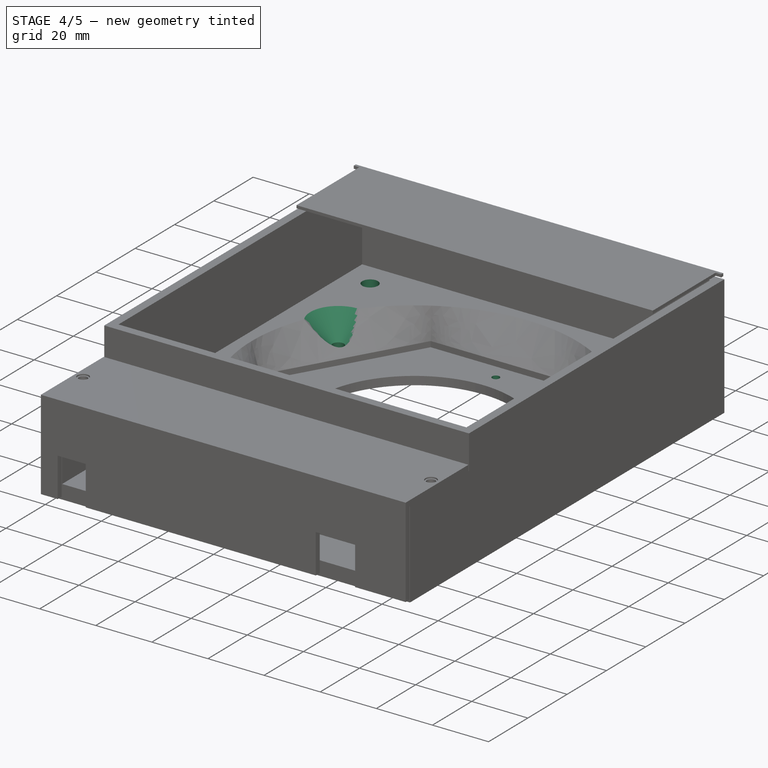
[diagram: stage 4 of 5 — iso view after this stage's code; geometry added in this stage tinted green]
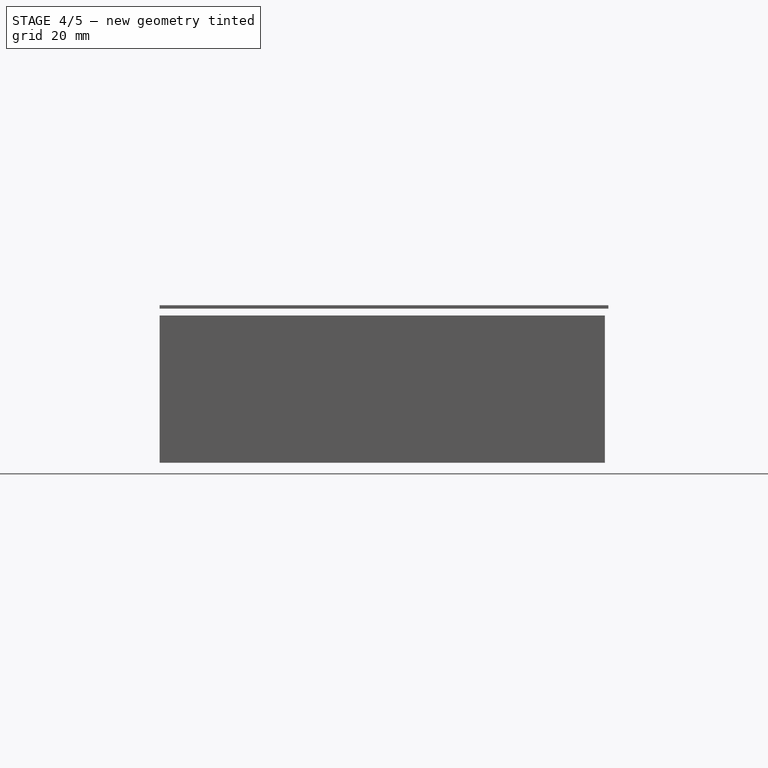
[diagram: stage 4 of 5 — front view after this stage's code; geometry added in this stage tinted green]
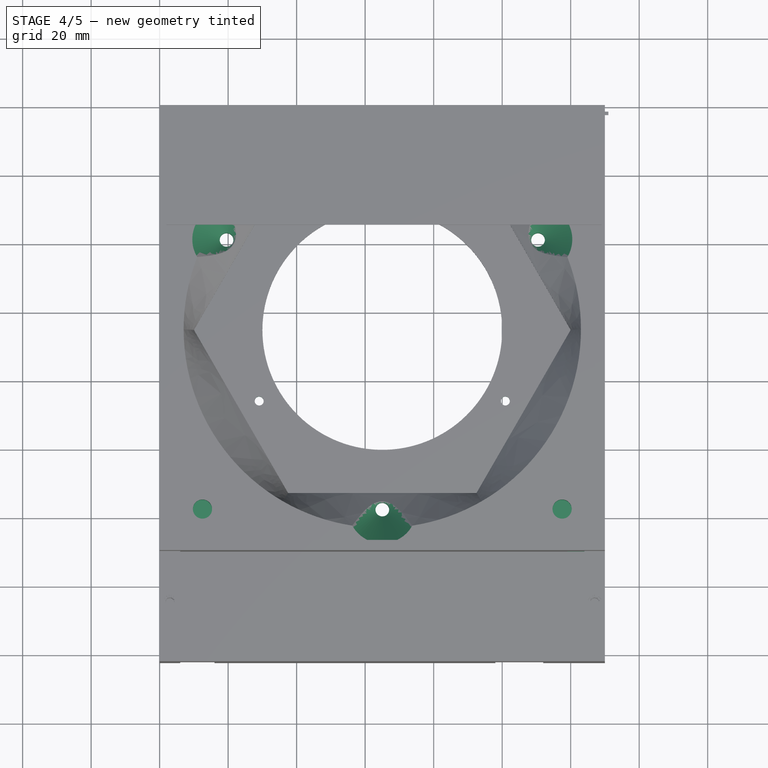
[diagram: stage 4 of 5 — top view after this stage's code; geometry added in this stage tinted green]
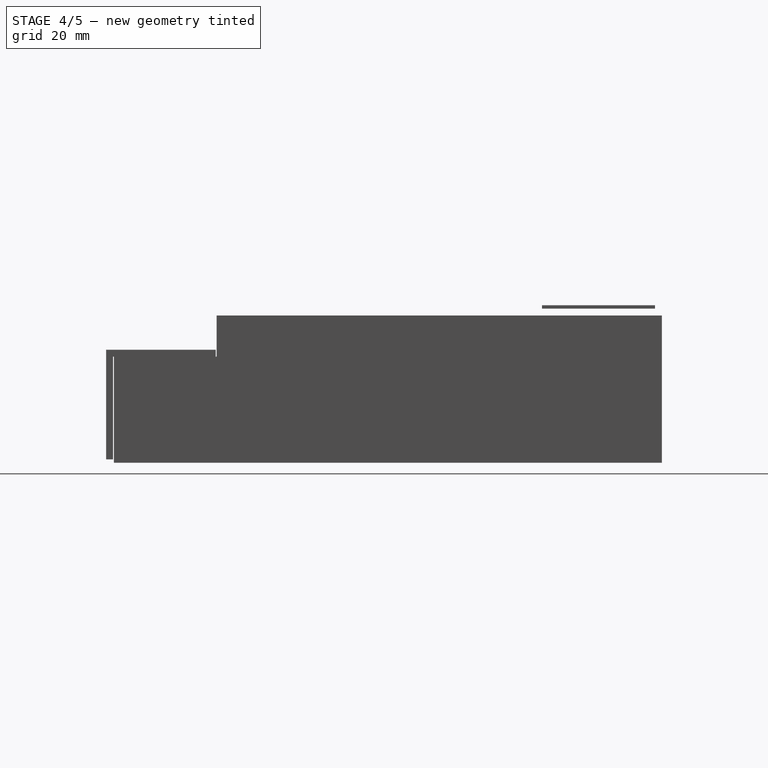
[diagram: stage 4 of 5 — right view after this stage's code; geometry added in this stage tinted green]
FEATURE [PartDesign::Body] Body001  label="GridMount"
  Group = -> [Sketch014,Pad005,Sketch015,Hole003]
  Origin = -> Origin001
  Tip = -> Hole003
FEATURE [Sketcher::SketchObject] Sketch008
  FullyConstrained = true
  MapMode = 5
  Placement = pos=(0,-130,0) rot=(1,0,0;1.5708rad)
  Support = -> [Pocket001]
  sketch-geometry (5):
    g0: LineSegment StartX=0 StartY=0 StartZ=0 EndX=119 EndY=15 EndZ=0
    g1: LineSegment StartX=119 StartY=15 StartZ=0 EndX=124 EndY=15 EndZ=0
    g2: LineSegment StartX=124 StartY=15 StartZ=0 EndX=124 EndY=23 EndZ=0
    g3: LineSegment StartX=124 StartY=23 StartZ=0 EndX=119 EndY=23 EndZ=0
    g4: LineSegment StartX=119 StartY=23 StartZ=0 EndX=119 EndY=15 EndZ=0
  constraints (14):
    c: Coincident(g0,g-1)
    c: DistanceX(g0,g0) = 119
    c: DistanceY(g0,g0) = 15
    c: Coincident(g1,g2)
    c: Coincident(g2,g3)
    c: Coincident(g3,g4)
    c: Coincident(g4,g1)
    c: Horizontal(g1)
    c: Horizontal(g3)
    c: Vertical(g2)
    c: Vertical(g4)
    c: Coincident(g1,g0)
    c: DistanceY(g4,g4) = 8
    c: DistanceX(g1,g1) = 5
FEATURE [PartDesign::Pocket] Pocket002  label="CableHole"
  BaseFeature = -> Pocket001
  Direction = (0,1,-2e-16)
  Length = 5
  Length2 = 100
  Profile = -> Sketch008
  Type = 0
FEATURE [Sketcher::SketchObject] Sketch009
  FullyConstrained = true
  MapMode = 5
  Placement = pos=(0,0,15) rot=(0,0,1;0rad)
  Support = -> [Pocket002]
  sketch-geometry (9):
    g0: LineSegment StartX=12.5 StartY=-12.5 StartZ=0 EndX=117.5 EndY=-12.5 EndZ=0
    g1: LineSegment StartX=117.5 StartY=-12.5 StartZ=0 EndX=117.5 EndY=-117.5 EndZ=0
    g2: LineSegment StartX=117.5 StartY=-117.5 StartZ=0 EndX=12.5 EndY=-117.5 EndZ=0
    g3: LineSegment StartX=12.5 StartY=-117.5 StartZ=0 EndX=12.5 EndY=-12.5 EndZ=0
    g4: LineSegment StartX=0 StartY=0 StartZ=0 EndX=12.5 EndY=-12.5 EndZ=0
    g5: Circle CenterX=12.5 CenterY=-12.5 CenterZ=0 NormalX=0 NormalY=0 NormalZ=1 AngleXU=0 Radius=2.8
    g6: Circle CenterX=117.5 CenterY=-12.5 CenterZ=0 NormalX=0 NormalY=0 NormalZ=1 AngleXU=0 Radius=2.8
    g7: Circle CenterX=117.5 CenterY=-117.5 CenterZ=0 NormalX=0 NormalY=0 NormalZ=1 AngleXU=0 Radius=2.8
    g8: Circle CenterX=12.5 CenterY=-117.5 CenterZ=0 NormalX=0 NormalY=0 NormalZ=1 AngleXU=0 Radius=2.8
  constraints (22):
    c: Coincident(g0,g1)
    c: Coincident(g1,g2)
    c: Coincident(g2,g3)
    c: Coincident(g3,g0)
    c: Horizontal(g0)
    c: Horizontal(g2)
    c: Vertical(g1)
    c: Vertical(g3)
    c: DistanceX(g0,g0) = 105
    c: DistanceY(g3,g3) = 105
    c: Coincident(g4,g0)
    c: Coincident(g5,g0)
    c: Diameter(g5) = 5.6
    c: Coincident(g6,g0)
    c: Coincident(g7,g1)
    c: Coincident(g8,g2)
    c: Equal(g5,g8)
    c: Equal(g8,g7)
    c: Equal(g7,g6)
    c: Coincident(g4,g-1)
    c: DistanceX(g4,g4) = 12.5
    c: DistanceY(g4,g4) = 12.5
FEATURE [PartDesign::Hole] Hole  label="ThreadedInsertVentilator"
  BaseFeature = -> Pocket002
  CustomThreadClearance = 0
  Depth = 6
  DepthType = 0
  Diameter = 5.6
  DrillForDepth = false
  DrillPoint = 0
  DrillPointAngle = 120
  HoleCutCountersinkAngle = 90
  HoleCutCustomValues = false
  HoleCutDepth = 0
  HoleCutDiameter = 6.1
  HoleCutType = 0
  ModelThread = false
  Profile = -> Sketch009
  Tapered = false
  TaperedAngle = 90
  ThreadClass = 0
  ThreadDepth = 6
  ThreadDepthType = 0
  ThreadDirection = 0
  ThreadFit = 0
  ThreadSize = 0
  ThreadType = 0
  Threaded = false
  UseCustomThreadClearance = false
FEATURE [Sketcher::SketchObject] Sketch010
  ExternalGeometry = -> [Hole]
  FullyConstrained = true
  MapMode = 5
  Placement = pos=(0,0,15) rot=(0,0,1;0rad)
  Support = -> [Hole]
  sketch-geometry (7):
    g0: LineSegment StartX=65 StartY=-117.5 StartZ=0 EndX=110.466 EndY=-38.75 EndZ=0
    g1: LineSegment StartX=110.466 StartY=-38.75 StartZ=0 EndX=19.5337 EndY=-38.75 EndZ=0
    g2: LineSegment StartX=19.5337 StartY=-38.75 StartZ=0 EndX=65 EndY=-117.5 EndZ=0
    g3: Circle CenterX=65 CenterY=-65 CenterZ=0 NormalX=0 NormalY=0 NormalZ=1 AngleXU=0 Radius=52.5
    g4: Circle CenterX=19.5337 CenterY=-38.75 CenterZ=0 NormalX=0 NormalY=0 NormalZ=1 AngleXU=0 Radius=1.75
    g5: Circle CenterX=110.466 CenterY=-38.75 CenterZ=0 NormalX=0 NormalY=0 NormalZ=1 AngleXU=0 Radius=1.75
    g6: Circle CenterX=65 CenterY=-117.5 CenterZ=0 NormalX=0 NormalY=0 NormalZ=1 AngleXU=0 Radius=1.75
  constraints (17):
    c: Coincident(g0,g1)
    c: Coincident(g1,g2)
    c: Coincident(g2,g0)
    c: Equal(g0,g1)
    c: Equal(g0,g2)
    c: PointOnObject(g0,g3)
    c: PointOnObject(g1,g3)
    c: PointOnObject(g2,g3)
    c: Coincident(g3,g-3)
    c: Coincident(g4,g1)
    c: Coincident(g5,g0)
    c: Coincident(g6,g0)
    c: Diameter(g4) = 3.5
    c: Equal(g4,g5)
    c: Equal(g5,g6)
    c: Distance(g4,g3) = 52.5
    c: Parallel(g-1,g1)
FEATURE [PartDesign::Hole] Hole001  label="WallMountHoles"
  BaseFeature = -> Hole
  CustomThreadClearance = 0
  Depth = 25
  DepthType = 1
  Diameter = 4
  DrillForDepth = false
  DrillPoint = 1
  DrillPointAngle = 118
  HoleCutCountersinkAngle = 90
  HoleCutCustomValues = false
  HoleCutDepth = 0
  HoleCutDiameter = 20
  HoleCutType = 2
  ModelThread = false
  Profile = -> Sketch010
  Tapered = false
  TaperedAngle = 92
  ThreadClass = 0
  ThreadDepth = 23.5
  ThreadDepthType = 0
  ThreadDirection = 0
  ThreadFit = 0
  ThreadSize = 0
  ThreadType = 0
  Threaded = false
  UseCustomThreadClearance = false
FEATURE [Sketcher::SketchObject] Sketch011
  ExternalGeometry = -> [Hole001]
  FullyConstrained = true
  MapMode = 5
  Placement = pos=(0,0,3) rot=(0,0,1;0rad)
  Support = -> [Hole001]
  sketch-geometry (7):
    g0: LineSegment StartX=29.0599 StartY=-85.75 StartZ=0 EndX=100.94 EndY=-85.75 EndZ=0
    g1: LineSegment StartX=100.94 StartY=-85.75 StartZ=0 EndX=65 EndY=-23.5 EndZ=0
    g2: LineSegment StartX=65 StartY=-23.5 StartZ=0 EndX=29.0599 EndY=-85.75 EndZ=0
    g3: Circle CenterX=65 CenterY=-65 CenterZ=0 NormalX=0 NormalY=0 NormalZ=1 AngleXU=0 Radius=41.5
    g4: Circle CenterX=65 CenterY=-23.5 CenterZ=0 NormalX=0 NormalY=0 NormalZ=1 AngleXU=0 Radius=2
    g5: Circle CenterX=100.94 CenterY=-85.75 CenterZ=0 NormalX=0 NormalY=0 NormalZ=1 AngleXU=0 Radius=2
    g6: Circle CenterX=29.0599 CenterY=-85.75 CenterZ=0 NormalX=0 NormalY=0 NormalZ=1 AngleXU=0 Radius=2
  constraints (17):
    c: Equal(g0,g2)
    c: Equal(g2,g1)
    c: Coincident(g2,g0)
    c: Coincident(g0,g1)
    c: Coincident(g1,g2)
    c: Coincident(g3,g-3)
    c: PointOnObject(g0,g3)
    c: PointOnObject(g0,g3)
    c: PointOnObject(g1,g3)
    c: Coincident(g1,g4)
    c: Coincident(g5,g0)
    c: Coincident(g6,g0)
    c: Horizontal(g0)
    c: Equal(g6,g5)
    c: Equal(g5,g4)
    c: Diameter(g4) = 4
    c: Radius(g3) = 41.5
FEATURE [PartDesign::Hole] Hole002  label="GridMountHoles"
  BaseFeature = -> Hole001
  CustomThreadClearance = 0
  Depth = 25
  DepthType = 0
  Diameter = 2.6
  DrillForDepth = false
  DrillPoint = 1
  DrillPointAngle = 118
  HoleCutCountersinkAngle = 90
  HoleCutCustomValues = false
  HoleCutDepth = 0
  HoleCutDiameter = 6.1
  HoleCutType = 0
  ModelThread = false
  Profile = -> Sketch011
  Tapered = false
  TaperedAngle = 90
  ThreadClass = 0
  ThreadDepth = 25
  ThreadDepthType = 0
  ThreadDirection = 0
  ThreadFit = 0
  ThreadSize = 0
  ThreadType = 0
  Threaded = false
  UseCustomThreadClearance = false
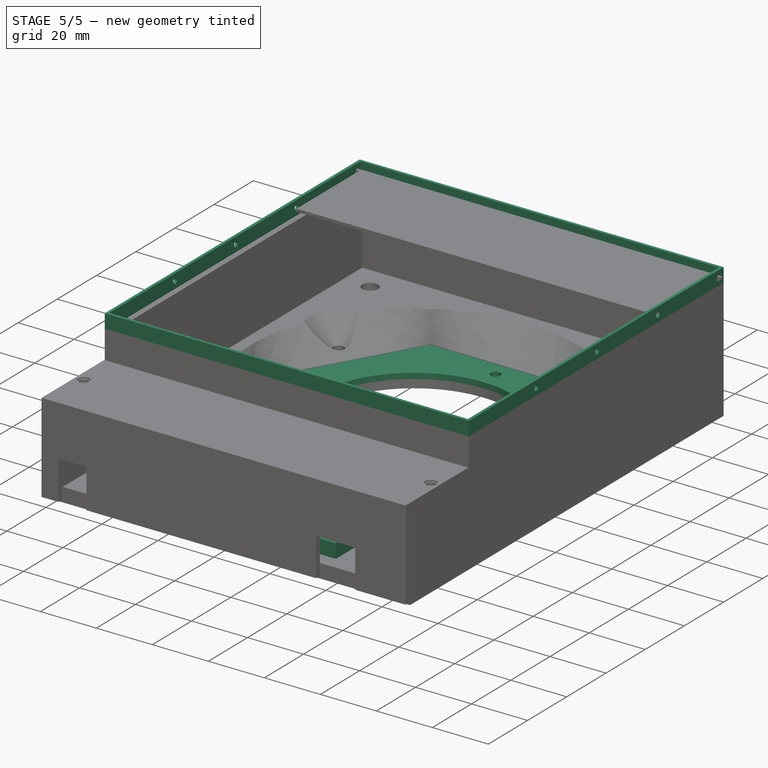
[diagram: stage 5 of 5 — iso view after this stage's code; geometry added in this stage tinted green]
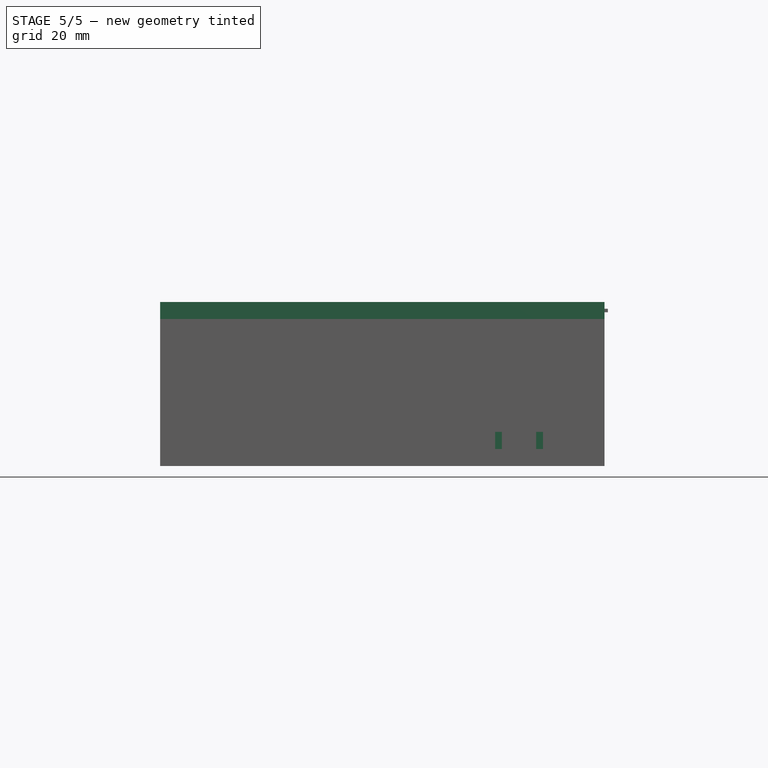
[diagram: stage 5 of 5 — front view after this stage's code; geometry added in this stage tinted green]
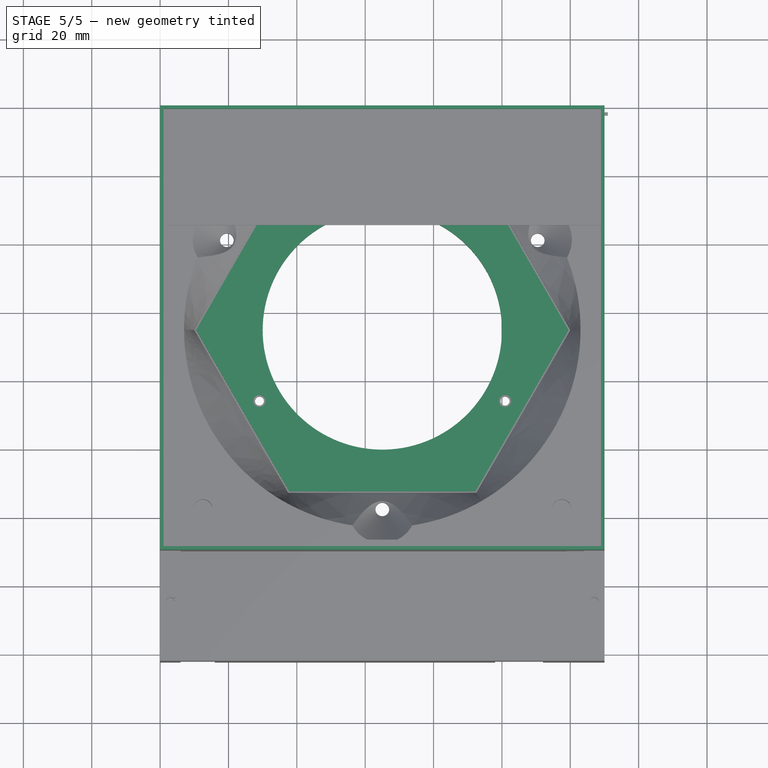
[diagram: stage 5 of 5 — top view after this stage's code; geometry added in this stage tinted green]
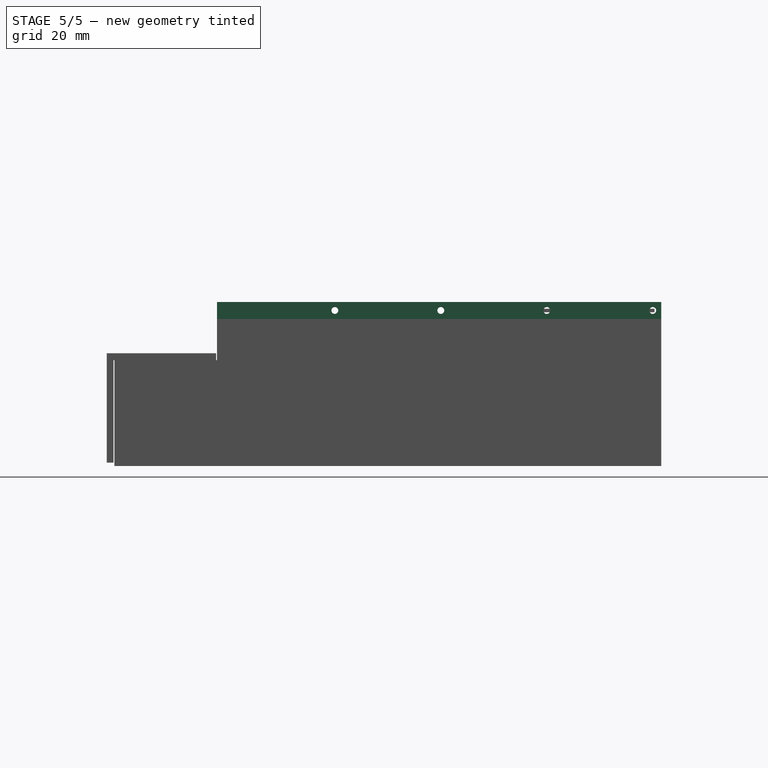
[diagram: stage 5 of 5 — right view after this stage's code; geometry added in this stage tinted green]
FEATURE [Sketcher::SketchObject] Sketch014
  AttachmentOffset = pos=(0,0,3) rot=(0,0,1;0rad)
  FullyConstrained = true
  MapMode = 5
  Placement = pos=(0,0,3) rot=(0,0,1;0rad)
  Support = -> [XY_Plane001]
  sketch-geometry (9):
    g0: LineSegment StartX=0 StartY=0 StartZ=0 EndX=65 EndY=-65 EndZ=0
    g1: LineSegment StartX=92.25 StartY=-112.198 StartZ=0 EndX=119.5 EndY=-65 EndZ=0
    g2: LineSegment StartX=119.5 StartY=-65 StartZ=0 EndX=92.25 EndY=-17.8016 EndZ=0
    g3: LineSegment StartX=92.25 StartY=-17.8016 StartZ=0 EndX=37.75 EndY=-17.8016 EndZ=0
    g4: LineSegment StartX=37.75 StartY=-17.8016 StartZ=0 EndX=10.5 EndY=-65 EndZ=0
    g5: LineSegment StartX=10.5 StartY=-65 StartZ=0 EndX=37.75 EndY=-112.198 EndZ=0
    g6: LineSegment StartX=37.75 StartY=-112.198 StartZ=0 EndX=92.25 EndY=-112.198 EndZ=0
    g7: Circle CenterX=65 CenterY=-65 CenterZ=0 NormalX=0 NormalY=0 NormalZ=1 AngleXU=0 Radius=54.5
    g8: Circle CenterX=65 CenterY=-65 CenterZ=0 NormalX=0 NormalY=0 NormalZ=1 AngleXU=0 Radius=35
  constraints (21):
    c: Coincident(g0,g-1)
    c: Coincident(g1,g2)
    c: Coincident(g2,g3)
    c: Coincident(g3,g4)
    c: Coincident(g4,g5)
    c: Coincident(g5,g6)
    c: Coincident(g6,g1)
    c: Equal(g1, g2-g6) x5
    c: PointOnObject(g1,g7)
    c: PointOnObject(g2,g7)
    c: PointOnObject(g3,g7)
    c: PointOnObject(g4,g7)
    c: PointOnObject(g5,g7)
    c: PointOnObject(g6,g7)
    c: Coincident(g7,g0)
    c: Parallel(g3,g-1)
    c: Distance(g0,g2) = 54.5
    c: DistanceX(g0,g0) = 65
    c: DistanceY(g0,g0) = 65
    c: Coincident(g8,g0)
    c: Radius(g8) = 35
FEATURE [PartDesign::Pad] Pad005  label="Base"
  Direction = (0,0,1)
  Length = 2
  Length2 = 10
  Profile = -> Sketch014
  ReferenceAxis = -> Sketch014 [N_Axis]
  Type = 0
FEATURE [Sketcher::SketchObject] Sketch015
  ExternalGeometry = -> [Pad005]
  FullyConstrained = true
  MapMode = 5
  Placement = pos=(0,0,5) rot=(0,0,1;0rad)
  Support = -> [Pad005]
  sketch-geometry (7):
    g0: LineSegment StartX=65 StartY=-23.5 StartZ=0 EndX=29.0599 EndY=-85.75 EndZ=0
    g1: LineSegment StartX=29.0599 StartY=-85.75 StartZ=0 EndX=100.94 EndY=-85.75 EndZ=0
    g2: LineSegment StartX=100.94 StartY=-85.75 StartZ=0 EndX=65 EndY=-23.5 EndZ=0
    g3: Circle CenterX=65 CenterY=-65 CenterZ=0 NormalX=0 NormalY=0 NormalZ=1 AngleXU=0 Radius=41.5
    g4: Circle CenterX=65 CenterY=-23.5 CenterZ=0 NormalX=0 NormalY=0 NormalZ=1 AngleXU=0 Radius=1.3
    g5: Circle CenterX=29.0599 CenterY=-85.75 CenterZ=0 NormalX=0 NormalY=0 NormalZ=1 AngleXU=0 Radius=1.3
    g6: Circle CenterX=100.94 CenterY=-85.75 CenterZ=0 NormalX=0 NormalY=0 NormalZ=1 AngleXU=0 Radius=1.3
  constraints (17):
    c: Coincident(g0,g1)
    c: Coincident(g1,g2)
    c: Coincident(g2,g0)
    c: Equal(g0,g1)
    c: Equal(g0,g2)
    c: PointOnObject(g0,g3)
    c: PointOnObject(g1,g3)
    c: PointOnObject(g2,g3)
    c: Coincident(g3,g-3)
    c: Parallel(g1,g-1)
    c: DistanceY(g3,g0) = 41.5
    c: Coincident(g4,g0)
    c: Diameter(g4) = 2.6
    c: Coincident(g5,g0)
    c: Coincident(g6,g1)
    c: Equal(g4,g6)
    c: Equal(g6,g5)
FEATURE [PartDesign::Hole] Hole003
  BaseFeature = -> Pad005
  CustomThreadClearance = 0
  Depth = 25
  DepthType = 0
  Diameter = 3.5
  DrillForDepth = false
  DrillPoint = 1
  DrillPointAngle = 118
  HoleCutCountersinkAngle = 90
  HoleCutCustomValues = false
  HoleCutDepth = 0
  HoleCutDiameter = 6.1
  HoleCutType = 0
  ModelThread = false
  Profile = -> Sketch015
  Tapered = false
  TaperedAngle = 90
  ThreadClass = 0
  ThreadDepth = 25
  ThreadDepthType = 0
  ThreadDirection = 0
  ThreadFit = 0
  ThreadSize = 0
  ThreadType = 0
  Threaded = false
  UseCustomThreadClearance = false
FEATURE [Sketcher::SketchObject] Sketch012
  ExternalGeometry = -> [Hole002]
  FullyConstrained = true
  MapMode = 5
  Placement = pos=(0,0,43) rot=(0,0,1;0rad)
  Support = -> [Hole002]
  sketch-geometry (11):
    g0: LineSegment StartX=0 StartY=0 StartZ=0 EndX=130 EndY=0 EndZ=0
    g1: LineSegment StartX=130 StartY=0 StartZ=0 EndX=130 EndY=-130 EndZ=0
    g2: LineSegment StartX=130 StartY=-130 StartZ=0 EndX=0 EndY=-130 EndZ=0
    g3: LineSegment StartX=0 StartY=-130 StartZ=0 EndX=0 EndY=0 EndZ=0
    g4: LineSegment StartX=1 StartY=-1 StartZ=0 EndX=129 EndY=-1 EndZ=0
    g5: LineSegment StartX=129 StartY=-1 StartZ=0 EndX=129 EndY=-129 EndZ=0
    g6: LineSegment StartX=129 StartY=-129 StartZ=0 EndX=1 EndY=-129 EndZ=0
    g7: LineSegment StartX=1 StartY=-129 StartZ=0 EndX=1 EndY=-1 EndZ=0
    g8: LineSegment StartX=0 StartY=0 StartZ=0 EndX=1 EndY=-1 EndZ=0
    g9: LineSegment StartX=129 StartY=-129 StartZ=0 EndX=130 EndY=-130 EndZ=0
    g10: LineSegment StartX=129 StartY=-1 StartZ=0 EndX=130 EndY=0 EndZ=0
  constraints (28):
    c: Coincident(g0,g1)
    c: Coincident(g1,g2)
    c: Coincident(g2,g3)
    c: Coincident(g3,g0)
    c: Horizontal(g0)
    c: Horizontal(g2)
    c: Vertical(g1)
    c: Vertical(g3)
    c: Coincident(g0,g-1)
    c: Coincident(g4,g5)
    c: Coincident(g5,g6)
    c: Coincident(g6,g7)
    c: Coincident(g7,g4)
    c: Horizontal(g4)
    c: Horizontal(g6)
    c: Vertical(g5)
    c: Vertical(g7)
    c: Coincident(g8,g0)
    c: Coincident(g8,g4)
    c: Coincident(g9,g5)
    c: Coincident(g9,g1)
    c: Equal(g9,g8)
    c: Coincident(g10,g4)
    c: Coincident(g10,g0)
    c: Equal(g10,g8)
    c: DistanceX(g0,g4) = 1
    c: DistanceY(g4,g0) = 1
    c: Coincident(g1,g-3)
FEATURE [PartDesign::Pad] Pad004  label="CoverWalls"
  BaseFeature = -> Hole002
  Direction = (0,0,1)
  Length = 5
  Length2 = 10
  Profile = -> Sketch012
  ReferenceAxis = -> Sketch012 [N_Axis]
  Type = 0
FEATURE [Sketcher::SketchObject] Sketch016
  FullyConstrained = true
  MapMode = 5
  Placement = pos=(130,0,0) rot=(0.57735,0.57735,0.57735;2.0944rad)
  Support = -> [Pad004]
  sketch-geometry (8):
    g0: LineSegment StartX=0 StartY=0 StartZ=0 EndX=-2.5 EndY=45.5 EndZ=0
    g1: LineSegment StartX=-2.5 StartY=45.5 StartZ=0 EndX=-33.5 EndY=45.5 EndZ=0
    g2: LineSegment StartX=-33.5 StartY=45.5 StartZ=0 EndX=-64.5 EndY=45.5 EndZ=0
    g3: LineSegment StartX=-64.5 StartY=45.5 StartZ=0 EndX=-95.5 EndY=45.5 EndZ=0
    g4: Circle CenterX=-2.5 CenterY=45.5 CenterZ=0 NormalX=0 NormalY=0 NormalZ=1 AngleXU=0 Radius=1
    g5: Circle CenterX=-33.5 CenterY=45.5 CenterZ=0 NormalX=0 NormalY=0 NormalZ=1 AngleXU=0 Radius=1
    g6: Circle CenterX=-64.5 CenterY=45.5 CenterZ=0 NormalX=0 NormalY=0 NormalZ=1 AngleXU=0 Radius=1
    g7: Circle CenterX=-95.5 CenterY=45.5 CenterZ=0 NormalX=0 NormalY=0 NormalZ=1 AngleXU=0 Radius=1
  constraints (20):
    c: Coincident(g0,g-1)
    c: DistanceY(g0,g0) = 45.5
    c: DistanceX(g0,g0) = 2.5
    c: Coincident(g1,g0)
    c: Horizontal(g1)
    c: DistanceX(g1,g1) = 31
    c: Coincident(g2,g1)
    c: Horizontal(g2)
    c: Coincident(g3,g2)
    c: Horizontal(g3)
    c: Equal(g1,g2)
    c: Equal(g2,g3)
    c: Coincident(g4,g0)
    c: Coincident(g5,g1)
    c: Coincident(g6,g2)
    c: Coincident(g7,g3)
    c: Equal(g7,g6)
    c: Equal(g6,g5)
    c: Equal(g5,g4)
    c: Diameter(g7) = 2
FEATURE [PartDesign::Pocket] Pocket003  label="CoverHoles"
  BaseFeature = -> Pad004
  Direction = (-1,0,0)
  Length = 5
  Length2 = 5
  Profile = -> Sketch016
  ReferenceAxis = -> Sketch016 [N_Axis]
  Type = 1
FEATURE [Sketcher::SketchObject] Sketch017
  FullyConstrained = true
  MapMode = 5
  Placement = pos=(0,0,5) rot=(0,0,1;0rad)
  Support = -> [Pocket003]
  sketch-geometry (14):
    g0: LineSegment StartX=0 StartY=0 StartZ=0 EndX=95 EndY=-150 EndZ=0
    g1: LineSegment StartX=95 StartY=-150 StartZ=0 EndX=115 EndY=-150 EndZ=0
    g2: LineSegment StartX=100 StartY=-155 StartZ=0 EndX=100 EndY=-145 EndZ=0
    g3: LineSegment StartX=100 StartY=-145 StartZ=0 EndX=90 EndY=-145 EndZ=0
    g4: LineSegment StartX=90 StartY=-145 StartZ=0 EndX=90 EndY=-155 EndZ=0
    g5: LineSegment StartX=90 StartY=-155 StartZ=0 EndX=100 EndY=-155 EndZ=0
    g6: Circle CenterX=95 CenterY=-150 CenterZ=0 NormalX=0 NormalY=0 NormalZ=1 AngleXU=0 Radius=7.07107
    g7: LineSegment StartX=120 StartY=-155 StartZ=0 EndX=120 EndY=-145 EndZ=0
    g8: LineSegment StartX=120 StartY=-145 StartZ=0 EndX=110 EndY=-145 EndZ=0
    g9: LineSegment StartX=110 StartY=-145 StartZ=0 EndX=110 EndY=-155 EndZ=0
    g10: LineSegment StartX=110 StartY=-155 StartZ=0 EndX=120 EndY=-155 EndZ=0
    g11: Circle CenterX=115 CenterY=-150 CenterZ=0 NormalX=0 NormalY=0 NormalZ=1 AngleXU=0 Radius=7.07107
    g12: Circle CenterX=95 CenterY=-150 CenterZ=0 NormalX=0 NormalY=0 NormalZ=1 AngleXU=0 Radius=1.25
    g13: Circle CenterX=115 CenterY=-150 CenterZ=0 NormalX=0 NormalY=0 NormalZ=1 AngleXU=0 Radius=1.25
  constraints (38):
    c: Coincident(g0,g-1)
    c: DistanceY(g0,g0) = 150
    c: DistanceX(g0,g0) = 95
    c: Coincident(g1,g0)
    c: Horizontal(g1)
    c: DistanceX(g1,g1) = 20
    c: Coincident(g2,g3)
    c: Coincident(g3,g4)
    c: Coincident(g4,g5)
    c: Coincident(g5,g2)
    c: Equal(g2,g3)
    c: Equal(g2,g4)
    c: Equal(g2,g5)
    c: PointOnObject(g2,g6)
    c: PointOnObject(g3,g6)
    c: PointOnObject(g4,g6)
    c: PointOnObject(g5,g6)
    c: Coincident(g6,g0)
    c: Coincident(g7,g8)
    c: Coincident(g8,g9)
    c: Coincident(g9,g10)
    c: Coincident(g10,g7)
    c: Equal(g7,g8)
    c: Equal(g7,g9)
    c: Equal(g7,g10)
    c: PointOnObject(g7,g11)
    c: PointOnObject(g8,g11)
    c: PointOnObject(g9,g11)
    c: PointOnObject(g10,g11)
    c: Coincident(g11,g1)
    c: Horizontal(g10)
    c: Horizontal(g5)
    c: DistanceY(g4,g4) = 10
    c: Equal(g9,g2)
    c: Coincident(g12,g0)
    c: Coincident(g13,g1)
    c: Equal(g13,g12)
    c: Diameter(g13) = 2.5
FEATURE [PartDesign::Pad] Pad006  label="CableClampMount"
  BaseFeature = -> Pocket003
  Direction = (0,0,1)
  Length = 5
  Length2 = 10
  Profile = -> Sketch017
  ReferenceAxis = -> Sketch017 [N_Axis]
  Type = 0
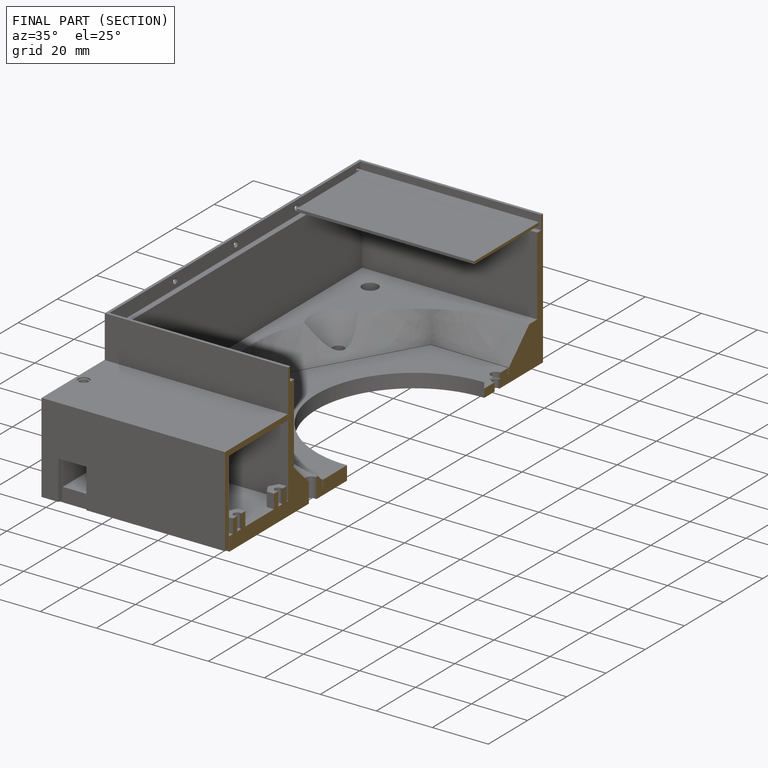
[diagram: finished part — half-section view (interior)]
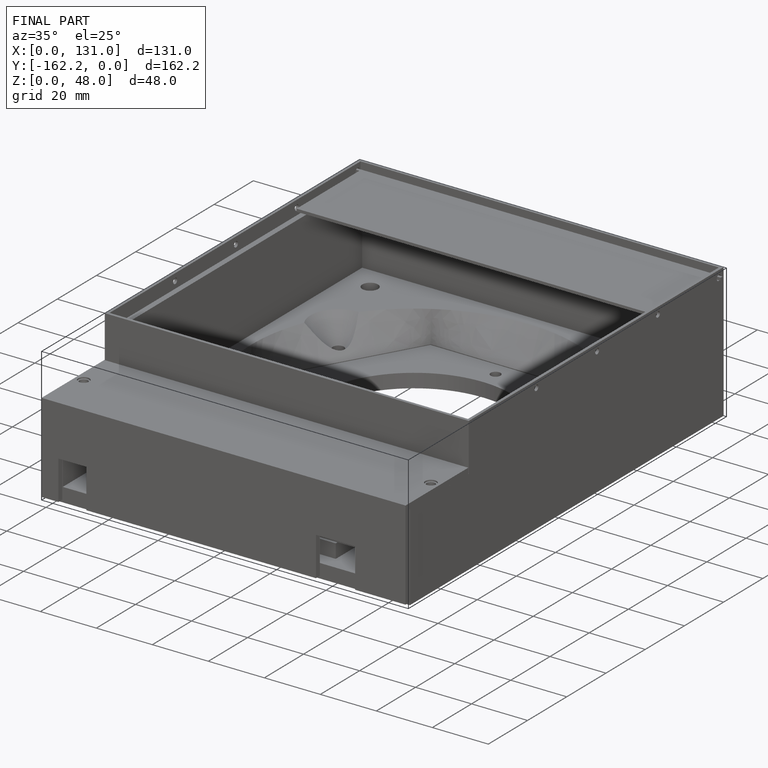
[diagram: finished part — iso view with bounding-box wireframe]
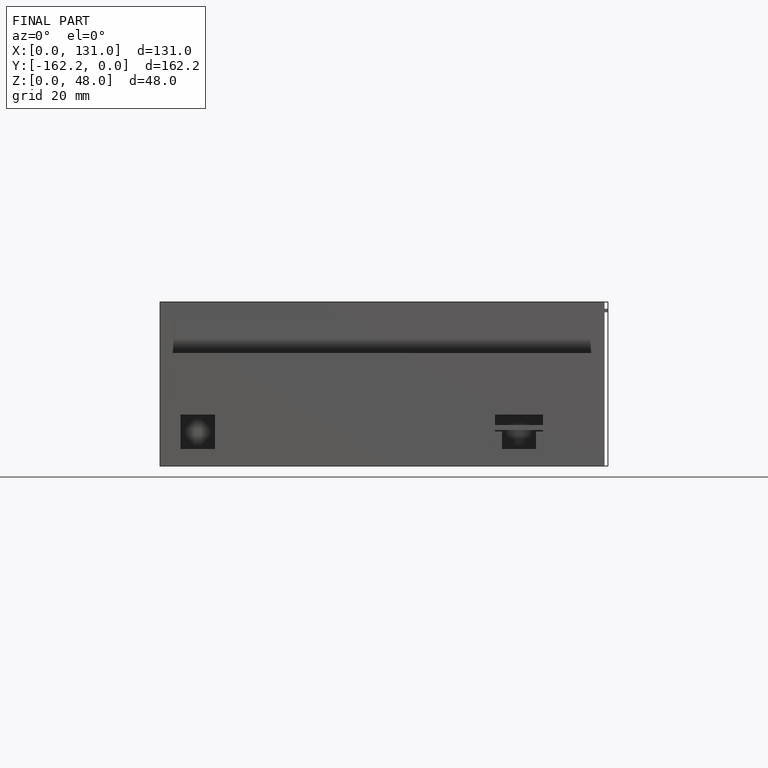
[diagram: finished part — front view with bounding-box wireframe]
